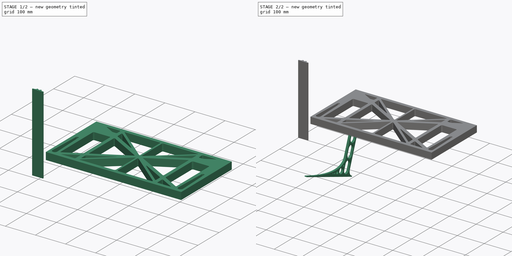
[diagram: build sequence overview — one tinted view per stage of 2, left to right]
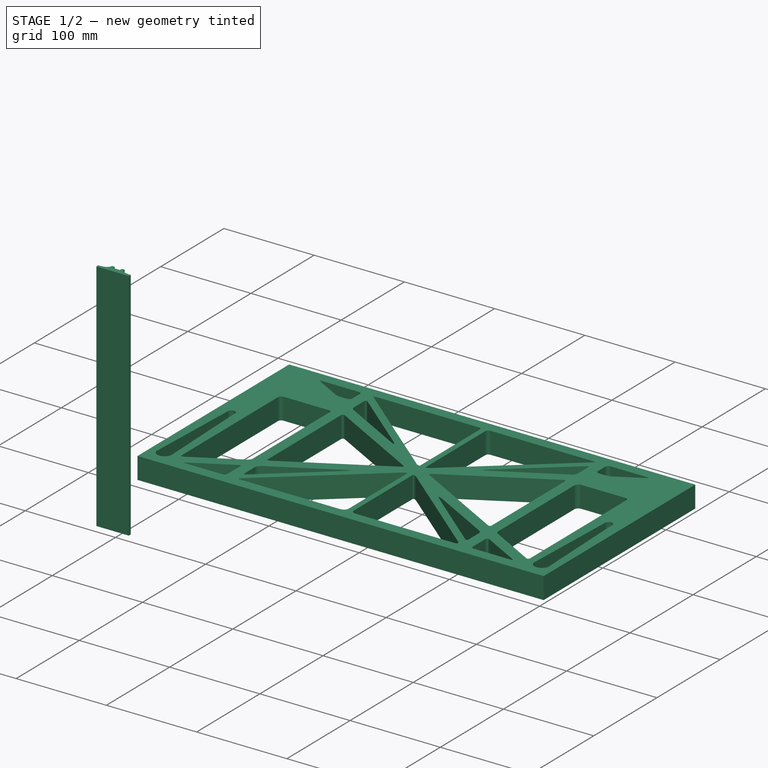
[diagram: stage 1 of 2 — iso view after this stage's code; geometry added in this stage tinted green]
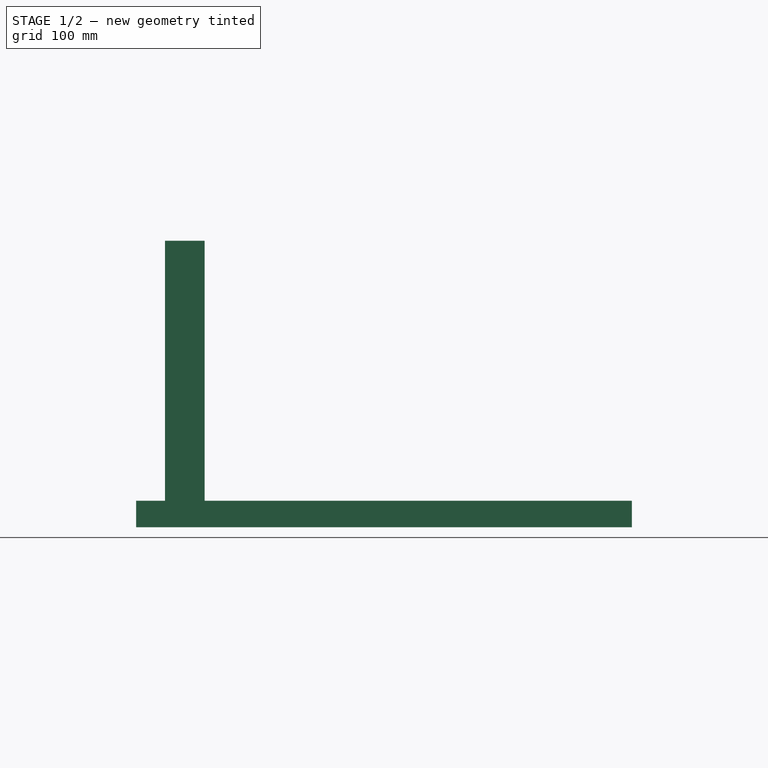
[diagram: stage 1 of 2 — front view after this stage's code; geometry added in this stage tinted green]
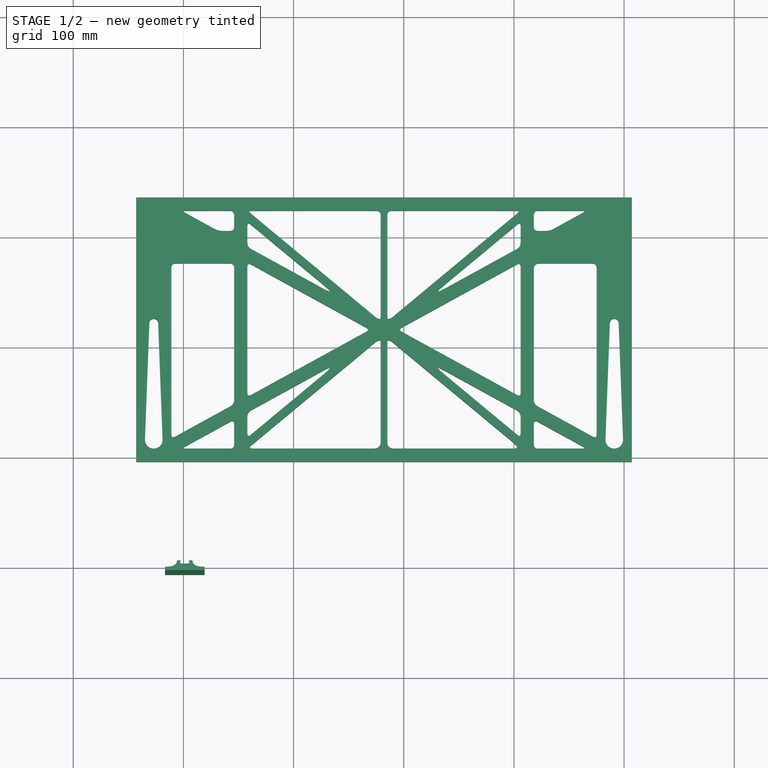
[diagram: stage 1 of 2 — top view after this stage's code; geometry added in this stage tinted green]
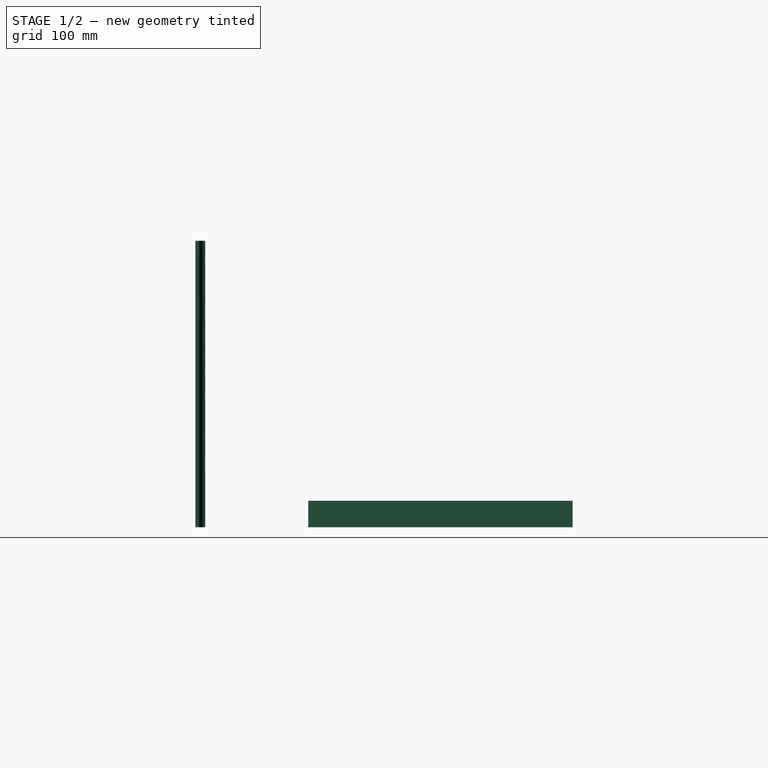
[diagram: stage 1 of 2 — right view after this stage's code; geometry added in this stage tinted green]
FCSTD DOCUMENT  (FreeCAD 0.19R0.19.2)
Label: laptopStand183FCStd
License: All rights reserved
LicenseURL: http://en.wikipedia.org/wiki/All_rights_reserved
objects: Sketcher::SketchObject×4, Part::Extrusion×3
note: 7 computed .brp shape members not serialized (recipe doc carries the construction recipe); baked Part::Feature solids carry a one-line shape summary decoded from their .brp

FEATURE [Sketcher::SketchObject] Sketch002
  FullyConstrained = true
  sketch-geometry (20):
    g0: LineSegment StartX=-2.77179 StartY=-200.304 StartZ=0 EndX=5.22821 EndY=-200.304 EndZ=0
    g1: LineSegment StartX=5.22821 StartY=-200.304 StartZ=0 EndX=5.22821 EndY=-197.304 EndZ=0
    g2: LineSegment StartX=-2.77179 StartY=-200.304 StartZ=0 EndX=-2.77179 EndY=-197.304 EndZ=0
    g3: LineSegment StartX=5.22821 StartY=-197.304 StartZ=0 EndX=8.22821 EndY=-197.304 EndZ=0
    g4: LineSegment StartX=-2.77179 StartY=-197.304 StartZ=0 EndX=-5.77179 EndY=-197.304 EndZ=0
    g5: LineSegment StartX=19.2282 StartY=-203.304 StartZ=0 EndX=19.2282 EndY=-206.304 EndZ=0
    g6: LineSegment StartX=-16.7718 StartY=-203.304 StartZ=0 EndX=-16.7718 EndY=-206.304 EndZ=0
    g7: LineSegment StartX=-16.7718 StartY=-206.304 StartZ=0 EndX=19.2282 EndY=-206.304 EndZ=0
    g8: Circle CenterX=-16.7718 CenterY=-203.304 CenterZ=0 NormalX=0 NormalY=0 NormalZ=1 AngleXU=0 Radius=1
    g9: Circle CenterX=-5.77179 CenterY=-203.304 CenterZ=0 NormalX=0 NormalY=0 NormalZ=1 AngleXU=0 Radius=1
    g10: Circle CenterX=-5.77179 CenterY=-197.304 CenterZ=0 NormalX=0 NormalY=0 NormalZ=1 AngleXU=0 Radius=1
    g11: BSplineCurve PolesCount=3 KnotsCount=2 Degree=2 IsPeriodic=0
    g12: GeomPoint X=-16.7718 Y=-203.304 Z=0
    g13: GeomPoint X=-5.77179 Y=-197.304 Z=0
    g14: Circle CenterX=19.2282 CenterY=-203.304 CenterZ=0 NormalX=0 NormalY=0 NormalZ=1 AngleXU=0 Radius=1
    g15: Circle CenterX=8.22821 CenterY=-203.304 CenterZ=0 NormalX=0 NormalY=0 NormalZ=1 AngleXU=0 Radius=1
    g16: Circle CenterX=8.22821 CenterY=-197.304 CenterZ=0 NormalX=0 NormalY=0 NormalZ=1 AngleXU=0 Radius=1
    g17: BSplineCurve PolesCount=3 KnotsCount=2 Degree=2 IsPeriodic=0
    g18: GeomPoint X=19.2282 Y=-203.304 Z=0
    g19: GeomPoint X=8.22821 Y=-197.304 Z=0
  constraints (41):
    c: Horizontal(g0)
    c: Distance(g0) = 8
    c: Coincident(g1,g0)
    c: Vertical(g1)
    c: Distance(g1) = 3
    c: Coincident(g2,g0)
    c: Vertical(g2)
    c: Distance(g2) = 3
    c: Coincident(g3,g1)
    c: Horizontal(g3)
    c: Distance(g3) = 3
    c: Coincident(g4,g2)
    c: Horizontal(g4)
    c: Distance(g4) = 3
    c: Vertical(g5)
    c: Vertical(g6)
    c: Coincident(g7,g6)
    c: Coincident(g7,g5)
    c: Weight(g8) = 1
    c: Equal(g8,g9)
    c: Equal(g8,g10)
    c: Coincident(g11,g4)
    c: InternalAlignment(g8,g11)
    c: InternalAlignment(g9,g11)
    c: InternalAlignment(g10,g11)
    c: InternalAlignment(g12,g11)
    c: InternalAlignment(g13,g11)
    c: Coincident(g17,g5)
    c: Weight(g14) = 1
    c: Equal(g14,g15)
    c: Equal(g14,g16)
    c: Coincident(g17,g3)
    c: InternalAlignment(g14,g17)
    c: InternalAlignment(g15,g17)
    c: InternalAlignment(g16,g17)
    c: InternalAlignment(g18,g17)
    c: InternalAlignment(g19,g17)
    c: Block(g7)
    c: Block(g17)
    c: Block(g11)
    c: Block(g6)
FEATURE [Part::Extrusion] Extrude003
  Base = -> Sketch002
  Dir = (0,0,1)
  DirMode = 2
  FaceMakerClass = Part::FaceMakerBullseye
  LengthFwd = 260
  LengthRev = 0
  Solid = true
  Symmetric = false
FEATURE [Sketcher::SketchObject] Sketch003
  FullyConstrained = false
  sketch-geometry (438):
    g0: LineSegment StartX=-42.9272 StartY=136.221 StartZ=0 EndX=-42.9272 EndY=-103.779 EndZ=0
    g1: LineSegment StartX=407.073 StartY=136.221 StartZ=0 EndX=407.073 EndY=-103.779 EndZ=0
    g2: ArcOfCircle CenterX=-26.9272 CenterY=-83.7794 CenterZ=0 NormalX=0 NormalY=0 NormalZ=1 AngleXU=0 Radius=8 StartAngle=3.14159 EndAngle=6.28319
    g3: ArcOfCircle CenterX=391.073 CenterY=-83.7794 CenterZ=0 NormalX=0 NormalY=0 NormalZ=1 AngleXU=0 Radius=8 StartAngle=3.14159 EndAngle=6.28319
    g4: Circle CenterX=175.022 CenterY=27.0628 CenterZ=0 NormalX=0 NormalY=0 NormalZ=1 AngleXU=0 Radius=1
    g5: Circle CenterX=179.022 CenterY=24.8665 CenterZ=0 NormalX=0 NormalY=0 NormalZ=1 AngleXU=0 Radius=1
    g6: Circle CenterX=179.022 CenterY=27.0628 CenterZ=0 NormalX=0 NormalY=0 NormalZ=1 AngleXU=0 Radius=1
    g7: BSplineCurve PolesCount=3 KnotsCount=2 Degree=2 IsPeriodic=0
    g8: GeomPoint X=175.022 Y=27.0628 Z=0
    g9: GeomPoint X=179.022 Y=27.0628 Z=0
    g10: Circle CenterX=189.124 CenterY=27.0628 CenterZ=0 NormalX=0 NormalY=0 NormalZ=1 AngleXU=0 Radius=1
    g11: Circle CenterX=185.124 CenterY=24.8665 CenterZ=0 NormalX=0 NormalY=0 NormalZ=1 AngleXU=0 Radius=1
    g12: Circle CenterX=185.124 CenterY=27.0628 CenterZ=0 NormalX=0 NormalY=0 NormalZ=1 AngleXU=0 Radius=1
    g13: BSplineCurve PolesCount=3 KnotsCount=2 Degree=2 IsPeriodic=0
    g14: GeomPoint X=189.124 Y=27.0628 Z=0
    g15: GeomPoint X=185.124 Y=27.0628 Z=0
    g16: Circle CenterX=175.022 CenterY=5.37834 CenterZ=0 NormalX=0 NormalY=0 NormalZ=1 AngleXU=0 Radius=1
    g17: Circle CenterX=179.022 CenterY=7.57463 CenterZ=0 NormalX=0 NormalY=0 NormalZ=1 AngleXU=0 Radius=1
    g18: Circle CenterX=179.022 CenterY=5.34704 CenterZ=0 NormalX=0 NormalY=0 NormalZ=1 AngleXU=0 Radius=1
    g19: BSplineCurve PolesCount=3 KnotsCount=2 Degree=2 IsPeriodic=0
    g20: GeomPoint X=175.022 Y=5.37834 Z=0
    g21: GeomPoint X=179.022 Y=5.34704 Z=0
    g22: Circle CenterX=189.124 CenterY=5.37834 CenterZ=0 NormalX=0 NormalY=0 NormalZ=1 AngleXU=0 Radius=1
    g23: Circle CenterX=185.124 CenterY=7.57463 CenterZ=0 NormalX=0 NormalY=0 NormalZ=1 AngleXU=0 Radius=1
    g24: Circle CenterX=185.124 CenterY=5.34704 CenterZ=0 NormalX=0 NormalY=0 NormalZ=1 AngleXU=0 Radius=1
    g25: BSplineCurve PolesCount=3 KnotsCount=2 Degree=2 IsPeriodic=0
    g26: GeomPoint X=189.124 Y=5.37834 Z=0
    g27: GeomPoint X=185.124 Y=5.34704 Z=0
    g28: Circle CenterX=165.871 CenterY=18.1458 CenterZ=0 NormalX=0 NormalY=0 NormalZ=1 AngleXU=0 Radius=1
    g29: Circle CenterX=169.377 CenterY=16.2206 CenterZ=0 NormalX=0 NormalY=0 NormalZ=1 AngleXU=0 Radius=1
    g30: Circle CenterX=165.871 CenterY=14.2954 CenterZ=0 NormalX=0 NormalY=0 NormalZ=1 AngleXU=0 Radius=1
    g31: BSplineCurve PolesCount=3 KnotsCount=2 Degree=2 IsPeriodic=0
    g32: GeomPoint X=165.871 Y=18.1458 Z=0
    g33: GeomPoint X=165.871 Y=14.2954 Z=0
    g34: Circle CenterX=198.275 CenterY=18.1458 CenterZ=0 NormalX=0 NormalY=0 NormalZ=1 AngleXU=0 Radius=1
    g35: Circle CenterX=194.768 CenterY=16.2206 CenterZ=0 NormalX=0 NormalY=0 NormalZ=1 AngleXU=0 Radius=1
    g36: Circle CenterX=198.275 CenterY=14.2954 CenterZ=0 NormalX=0 NormalY=0 NormalZ=1 AngleXU=0 Radius=1
    g37: BSplineCurve PolesCount=3 KnotsCount=2 Degree=2 IsPeriodic=0
    g38: GeomPoint X=198.275 Y=18.1458 Z=0
    g39: GeomPoint X=198.275 Y=14.2954 Z=0
    g40: LineSegment StartX=407.073 StartY=-103.779 StartZ=0 EndX=-42.9272 EndY=-103.779 EndZ=0
    g41: Circle CenterX=125.607 CenterY=54.1951 CenterZ=0 NormalX=0 NormalY=0 NormalZ=1 AngleXU=0 Radius=1
    g42: Circle CenterX=139.632 CenterY=46.4944 CenterZ=0 NormalX=0 NormalY=0 NormalZ=1 AngleXU=0 Radius=1
    g43: Circle CenterX=127.326 CenterY=56.7187 CenterZ=0 NormalX=0 NormalY=0 NormalZ=1 AngleXU=0 Radius=1
    g44: BSplineCurve PolesCount=3 KnotsCount=2 Degree=2 IsPeriodic=0
    g45: GeomPoint X=125.607 Y=54.1951 Z=0
    g46: GeomPoint X=127.326 Y=56.7187 Z=0
    g47: Circle CenterX=236.824 CenterY=56.7187 CenterZ=0 NormalX=0 NormalY=0 NormalZ=1 AngleXU=0 Radius=1
    g48: Circle CenterX=224.513 CenterY=46.4944 CenterZ=0 NormalX=0 NormalY=0 NormalZ=1 AngleXU=0 Radius=1
    g49: Circle CenterX=238.538 CenterY=54.1951 CenterZ=0 NormalX=0 NormalY=0 NormalZ=1 AngleXU=0 Radius=1
    g50: BSplineCurve PolesCount=3 KnotsCount=2 Degree=2 IsPeriodic=0
    g51: GeomPoint X=236.824 Y=56.7187 Z=0
    g52: GeomPoint X=238.538 Y=54.1951 Z=0
    g53: Circle CenterX=238.538 CenterY=-21.7539 CenterZ=0 NormalX=0 NormalY=0 NormalZ=1 AngleXU=0 Radius=1
    g54: Circle CenterX=224.513 CenterY=-14.0532 CenterZ=0 NormalX=0 NormalY=0 NormalZ=1 AngleXU=0 Radius=1
    g55: Circle CenterX=236.821 CenterY=-24.2775 CenterZ=0 NormalX=0 NormalY=0 NormalZ=1 AngleXU=0 Radius=1
    g56: BSplineCurve PolesCount=3 KnotsCount=2 Degree=2 IsPeriodic=0
    g57: GeomPoint X=238.538 Y=-21.7539 Z=0
    g58: GeomPoint X=236.821 Y=-24.2775 Z=0
    g59: Circle CenterX=125.607 CenterY=-21.7539 CenterZ=0 NormalX=0 NormalY=0 NormalZ=1 AngleXU=0 Radius=1
    g60: Circle CenterX=139.632 CenterY=-14.0532 CenterZ=0 NormalX=0 NormalY=0 NormalZ=1 AngleXU=0 Radius=1
    g61: Circle CenterX=127.325 CenterY=-24.2775 CenterZ=0 NormalX=0 NormalY=0 NormalZ=1 AngleXU=0 Radius=1
    g62: BSplineCurve PolesCount=3 KnotsCount=2 Degree=2 IsPeriodic=0
    g63: GeomPoint X=125.607 Y=-21.7539 Z=0
    g64: GeomPoint X=127.325 Y=-24.2775 Z=0
    g65: Circle CenterX=302.996 CenterY=111.695 CenterZ=0 NormalX=0 NormalY=0 NormalZ=1 AngleXU=0 Radius=1
    g66: Circle CenterX=306.073 CenterY=114.251 CenterZ=0 NormalX=0 NormalY=0 NormalZ=1 AngleXU=0 Radius=1
    g67: Circle CenterX=306.073 CenterY=110.251 CenterZ=0 NormalX=0 NormalY=0 NormalZ=1 AngleXU=0 Radius=1
    g68: BSplineCurve PolesCount=3 KnotsCount=2 Degree=2 IsPeriodic=0
    g69: GeomPoint X=302.996 Y=111.695 Z=0
    g70: GeomPoint X=306.073 Y=110.251 Z=0
    g71: Circle CenterX=306.073 CenterY=95.2763 CenterZ=0 NormalX=0 NormalY=0 NormalZ=1 AngleXU=0 Radius=1
    g72: Circle CenterX=306.073 CenterY=91.2763 CenterZ=0 NormalX=0 NormalY=0 NormalZ=1 AngleXU=0 Radius=1
    g73: Circle CenterX=302.567 CenterY=89.3511 CenterZ=0 NormalX=0 NormalY=0 NormalZ=1 AngleXU=0 Radius=1
    g74: BSplineCurve PolesCount=3 KnotsCount=2 Degree=2 IsPeriodic=0
    g75: GeomPoint X=306.073 Y=95.2763 Z=0
    g76: GeomPoint X=302.567 Y=89.3511 Z=0
    g77: LineSegment StartX=306.073 StartY=110.251 StartZ=0 EndX=306.073 EndY=95.2763 EndZ=0
    g78: LineSegment StartX=302.996 StartY=111.695 StartZ=0 EndX=236.824 EndY=56.7187 EndZ=0
    g79: LineSegment StartX=238.538 StartY=54.1951 StartZ=0 EndX=302.567 EndY=89.3511 EndZ=0
    g80: Circle CenterX=61.1496 CenterY=111.695 CenterZ=0 NormalX=0 NormalY=0 NormalZ=1 AngleXU=0 Radius=1
    g81: Circle CenterX=58.0728 CenterY=114.251 CenterZ=0 NormalX=0 NormalY=0 NormalZ=1 AngleXU=0 Radius=1
    g82: Circle CenterX=58.0728 CenterY=110.251 CenterZ=0 NormalX=0 NormalY=0 NormalZ=1 AngleXU=0 Radius=1
    g83: BSplineCurve PolesCount=3 KnotsCount=2 Degree=2 IsPeriodic=0
    g84: GeomPoint X=61.1496 Y=111.695 Z=0
    g85: GeomPoint X=58.0728 Y=110.251 Z=0
    g86: Circle CenterX=61.5791 CenterY=89.3511 CenterZ=0 NormalX=0 NormalY=0 NormalZ=1 AngleXU=0 Radius=1
    g87: Circle CenterX=58.0728 CenterY=91.2763 CenterZ=0 NormalX=0 NormalY=0 NormalZ=1 AngleXU=0 Radius=1
    g88: Circle CenterX=58.0728 CenterY=95.2763 CenterZ=0 NormalX=0 NormalY=0 NormalZ=1 AngleXU=0 Radius=1
    g89: BSplineCurve PolesCount=3 KnotsCount=2 Degree=2 IsPeriodic=0
    g90: GeomPoint X=61.5791 Y=89.3511 Z=0
    g91: GeomPoint X=58.0728 Y=95.2763 Z=0
    g92: LineSegment StartX=58.0728 StartY=110.251 StartZ=0 EndX=58.0728 EndY=95.2763 EndZ=0
    g93: LineSegment StartX=61.1496 StartY=111.695 StartZ=0 EndX=127.326 EndY=56.7187 EndZ=0
    g94: LineSegment StartX=125.607 StartY=54.1951 StartZ=0 EndX=61.5791 EndY=89.3511 EndZ=0
    g95: Circle CenterX=61.5791 CenterY=-56.9099 CenterZ=0 NormalX=0 NormalY=0 NormalZ=1 AngleXU=0 Radius=1
    g96: Circle CenterX=58.0728 CenterY=-58.8351 CenterZ=0 NormalX=0 NormalY=0 NormalZ=1 AngleXU=0 Radius=1
    g97: Circle CenterX=58.0728 CenterY=-62.8351 CenterZ=0 NormalX=0 NormalY=0 NormalZ=1 AngleXU=0 Radius=1
    g98: BSplineCurve PolesCount=3 KnotsCount=2 Degree=2 IsPeriodic=0
    g99: GeomPoint X=61.5791 Y=-56.9099 Z=0
    g100: GeomPoint X=58.0728 Y=-62.8351 Z=0
    g101: Circle CenterX=58.0728 CenterY=-77.8102 CenterZ=0 NormalX=0 NormalY=0 NormalZ=1 AngleXU=0 Radius=1
    g102: Circle CenterX=58.0728 CenterY=-81.8102 CenterZ=0 NormalX=0 NormalY=0 NormalZ=1 AngleXU=0 Radius=1
    g103: Circle CenterX=61.1496 CenterY=-79.2541 CenterZ=0 NormalX=0 NormalY=0 NormalZ=1 AngleXU=0 Radius=1
    g104: BSplineCurve PolesCount=3 KnotsCount=2 Degree=2 IsPeriodic=0
    g105: GeomPoint X=58.0728 Y=-77.8102 Z=0
    g106: GeomPoint X=61.1496 Y=-79.2541 Z=0
    g107: LineSegment StartX=58.0728 StartY=-62.8351 StartZ=0 EndX=58.0728 EndY=-77.8102 EndZ=0
    g108: LineSegment StartX=61.1496 StartY=-79.2541 StartZ=0 EndX=127.325 EndY=-24.2775 EndZ=0
    g109: LineSegment StartX=125.607 StartY=-21.7539 StartZ=0 EndX=61.5791 EndY=-56.9099 EndZ=0
    g110: Circle CenterX=302.567 CenterY=-56.9099 CenterZ=0 NormalX=0 NormalY=0 NormalZ=1 AngleXU=0 Radius=1
    g111: Circle CenterX=306.073 CenterY=-58.8351 CenterZ=0 NormalX=0 NormalY=0 NormalZ=1 AngleXU=0 Radius=1
    g112: Circle CenterX=306.073 CenterY=-62.8351 CenterZ=0 NormalX=0 NormalY=0 NormalZ=1 AngleXU=0 Radius=1
    g113: BSplineCurve PolesCount=3 KnotsCount=2 Degree=2 IsPeriodic=0
    g114: GeomPoint X=302.567 Y=-56.9099 Z=0
    g115: GeomPoint X=306.073 Y=-62.8351 Z=0
    g116: Circle CenterX=302.996 CenterY=-79.2541 CenterZ=0 NormalX=0 NormalY=0 NormalZ=1 AngleXU=0 Radius=1
    g117: Circle CenterX=306.073 CenterY=-81.8102 CenterZ=0 NormalX=0 NormalY=0 NormalZ=1 AngleXU=0 Radius=1
    g118: Circle CenterX=306.073 CenterY=-77.8102 CenterZ=0 NormalX=0 NormalY=0 NormalZ=1 AngleXU=0 Radius=1
    g119: BSplineCurve PolesCount=3 KnotsCount=2 Degree=2 IsPeriodic=0
    g120: GeomPoint X=302.996 Y=-79.2541 Z=0
    g121: GeomPoint X=306.073 Y=-77.8102 Z=0
    g122: LineSegment StartX=306.073 StartY=-62.8351 StartZ=0 EndX=306.073 EndY=-77.8102 EndZ=0
    g123: LineSegment StartX=302.996 StartY=-79.2541 StartZ=0 EndX=236.821 EndY=-24.2775 EndZ=0
    g124: LineSegment StartX=238.538 StartY=-21.7539 StartZ=0 EndX=302.567 EndY=-56.9099 EndZ=0
    g125: Circle CenterX=61.6457 CenterY=-88.8112 CenterZ=0 NormalX=0 NormalY=0 NormalZ=1 AngleXU=0 Radius=1
    g126: Circle CenterX=58.0728 CenterY=-91.7794 CenterZ=0 NormalX=0 NormalY=0 NormalZ=1 AngleXU=0 Radius=1
    g127: Circle CenterX=63.9135 CenterY=-91.7791 CenterZ=0 NormalX=0 NormalY=0 NormalZ=1 AngleXU=0 Radius=1
    g128: BSplineCurve PolesCount=3 KnotsCount=2 Degree=2 IsPeriodic=0
    g129: GeomPoint X=61.6457 Y=-88.8112 Z=0
    g130: GeomPoint X=63.9135 Y=-91.7791 Z=0
    g131: Circle CenterX=179.022 CenterY=-85.8163 CenterZ=0 NormalX=0 NormalY=0 NormalZ=1 AngleXU=0 Radius=1
    g132: Circle CenterX=179.022 CenterY=-91.7794 CenterZ=0 NormalX=0 NormalY=0 NormalZ=1 AngleXU=0 Radius=1
    g133: Circle CenterX=171.895 CenterY=-91.7791 CenterZ=0 NormalX=0 NormalY=0 NormalZ=1 AngleXU=0 Radius=1
    g134: BSplineCurve PolesCount=3 KnotsCount=2 Degree=2 IsPeriodic=0
    g135: GeomPoint X=179.022 Y=-85.8163 Z=0
    g136: GeomPoint X=171.895 Y=-91.7791 Z=0
    g137: Circle CenterX=185.124 CenterY=-86.2028 CenterZ=0 NormalX=0 NormalY=0 NormalZ=1 AngleXU=0 Radius=1
    g138: Circle CenterX=185.124 CenterY=-91.7794 CenterZ=0 NormalX=0 NormalY=0 NormalZ=1 AngleXU=0 Radius=1
    g139: Circle CenterX=191.747 CenterY=-91.7794 CenterZ=0 NormalX=0 NormalY=0 NormalZ=1 AngleXU=0 Radius=1
    g140: BSplineCurve PolesCount=3 KnotsCount=2 Degree=2 IsPeriodic=0
    g141: GeomPoint X=185.124 Y=-86.2028 Z=0
    g142: GeomPoint X=191.747 Y=-91.7794 Z=0
    g143: Circle CenterX=299.888 CenterY=-86.6413 CenterZ=0 NormalX=0 NormalY=0 NormalZ=1 AngleXU=0 Radius=1
    g144: Circle CenterX=306.073 CenterY=-91.7794 CenterZ=0 NormalX=0 NormalY=0 NormalZ=1 AngleXU=0 Radius=1
    g145: Circle CenterX=298.776 CenterY=-91.7794 CenterZ=0 NormalX=0 NormalY=0 NormalZ=1 AngleXU=0 Radius=1
    g146: BSplineCurve PolesCount=3 KnotsCount=2 Degree=2 IsPeriodic=0
    g147: GeomPoint X=299.888 Y=-86.6413 Z=0
    g148: GeomPoint X=298.776 Y=-91.7794 Z=0
    g149: LineSegment StartX=189.124 StartY=5.37834 StartZ=0 EndX=299.888 EndY=-86.6413 EndZ=0
    g150: LineSegment StartX=298.776 StartY=-91.7794 StartZ=0 EndX=191.747 EndY=-91.7794 EndZ=0
    g151: LineSegment StartX=185.124 StartY=-86.2028 StartZ=0 EndX=185.124 EndY=5.34704 EndZ=0
    g152: LineSegment StartX=179.022 StartY=5.34704 StartZ=0 EndX=179.022 EndY=-85.8163 EndZ=0
    g153: LineSegment StartX=171.895 StartY=-91.7791 StartZ=0 EndX=63.9135 EndY=-91.7791 EndZ=0
    g154: LineSegment StartX=61.6457 StartY=-88.8112 StartZ=0 EndX=175.022 EndY=5.37834 EndZ=0
    g155: Circle CenterX=302.073 CenterY=124.221 CenterZ=0 NormalX=0 NormalY=0 NormalZ=1 AngleXU=0 Radius=1
    g156: Circle CenterX=306.073 CenterY=124.221 CenterZ=0 NormalX=0 NormalY=0 NormalZ=1 AngleXU=0 Radius=1
    g157: Circle CenterX=302.996 CenterY=121.665 CenterZ=0 NormalX=0 NormalY=0 NormalZ=1 AngleXU=0 Radius=1
    g158: BSplineCurve PolesCount=3 KnotsCount=2 Degree=2 IsPeriodic=0
    g159: GeomPoint X=302.073 Y=124.221 Z=0
    g160: GeomPoint X=302.996 Y=121.665 Z=0
    g161: Circle CenterX=189.124 CenterY=124.221 CenterZ=0 NormalX=0 NormalY=0 NormalZ=1 AngleXU=0 Radius=1
    g162: Circle CenterX=185.124 CenterY=124.221 CenterZ=0 NormalX=0 NormalY=0 NormalZ=1 AngleXU=0 Radius=1
    g163: Circle CenterX=185.124 CenterY=120.221 CenterZ=0 NormalX=0 NormalY=0 NormalZ=1 AngleXU=0 Radius=1
    g164: BSplineCurve PolesCount=3 KnotsCount=2 Degree=2 IsPeriodic=0
    g165: GeomPoint X=189.124 Y=124.221 Z=0
    g166: GeomPoint X=185.124 Y=120.221 Z=0
    g167: Circle CenterX=175.022 CenterY=124.221 CenterZ=0 NormalX=0 NormalY=0 NormalZ=1 AngleXU=0 Radius=1
    g168: Circle CenterX=179.022 CenterY=124.221 CenterZ=0 NormalX=0 NormalY=0 NormalZ=1 AngleXU=0 Radius=1
    g169: Circle CenterX=179.022 CenterY=120.221 CenterZ=0 NormalX=0 NormalY=0 NormalZ=1 AngleXU=0 Radius=1
    g170: BSplineCurve PolesCount=3 KnotsCount=2 Degree=2 IsPeriodic=0
    g171: GeomPoint X=175.022 Y=124.221 Z=0
    g172: GeomPoint X=179.022 Y=120.221 Z=0
    g173: Circle CenterX=62.0728 CenterY=124.221 CenterZ=0 NormalX=0 NormalY=0 NormalZ=1 AngleXU=0 Radius=1
    g174: Circle CenterX=58.0728 CenterY=124.221 CenterZ=0 NormalX=0 NormalY=0 NormalZ=1 AngleXU=0 Radius=1
    g175: Circle CenterX=61.1496 CenterY=121.665 CenterZ=0 NormalX=0 NormalY=0 NormalZ=1 AngleXU=0 Radius=1
    g176: BSplineCurve PolesCount=3 KnotsCount=2 Degree=2 IsPeriodic=0
    g177: GeomPoint X=62.0728 Y=124.221 Z=0
    g178: GeomPoint X=61.1496 Y=121.665 Z=0
    g179: LineSegment StartX=179.022 StartY=120.221 StartZ=0 EndX=179.022 EndY=27.0628 EndZ=0
    g180: LineSegment StartX=185.124 StartY=27.0628 StartZ=0 EndX=185.124 EndY=120.221 EndZ=0
    g181: LineSegment StartX=302.996 StartY=121.665 StartZ=0 EndX=189.124 EndY=27.0628 EndZ=0
    g182: LineSegment StartX=175.022 StartY=27.0628 StartZ=0 EndX=61.1496 EndY=121.665 EndZ=0
    g183: Circle CenterX=61.5791 CenterY=75.4095 CenterZ=0 NormalX=0 NormalY=0 NormalZ=1 AngleXU=0 Radius=1
    g184: Circle CenterX=58.0728 CenterY=77.3346 CenterZ=0 NormalX=0 NormalY=0 NormalZ=1 AngleXU=0 Radius=1
    g185: Circle CenterX=58.0728 CenterY=73.3346 CenterZ=0 NormalX=0 NormalY=0 NormalZ=1 AngleXU=0 Radius=1
    g186: BSplineCurve PolesCount=3 KnotsCount=2 Degree=2 IsPeriodic=0
    g187: GeomPoint X=61.5791 Y=75.4095 Z=0
    g188: GeomPoint X=58.0728 Y=73.3346 Z=0
    g189: Circle CenterX=58.0728 CenterY=-40.8935 CenterZ=0 NormalX=0 NormalY=0 NormalZ=1 AngleXU=0 Radius=1
    g190: Circle CenterX=58.0728 CenterY=-44.8935 CenterZ=0 NormalX=0 NormalY=0 NormalZ=1 AngleXU=0 Radius=1
    g191: Circle CenterX=61.5791 CenterY=-42.9683 CenterZ=0 NormalX=0 NormalY=0 NormalZ=1 AngleXU=0 Radius=1
    g192: BSplineCurve PolesCount=3 KnotsCount=2 Degree=2 IsPeriodic=0
    g193: GeomPoint X=58.0728 Y=-40.8935 Z=0
    g194: GeomPoint X=61.5791 Y=-42.9683 Z=0
    g195: LineSegment StartX=61.5791 StartY=-42.9683 StartZ=0 EndX=165.871 EndY=14.2954 EndZ=0
    g196: LineSegment StartX=165.871 StartY=18.1458 StartZ=0 EndX=61.5791 EndY=75.4095 EndZ=0
    g197: LineSegment StartX=58.0728 StartY=73.3346 StartZ=0 EndX=58.0728 EndY=-40.8935 EndZ=0
    g198: Circle CenterX=302.567 CenterY=-42.9683 CenterZ=0 NormalX=0 NormalY=0 NormalZ=1 AngleXU=0 Radius=1
    g199: Circle CenterX=306.073 CenterY=-44.8935 CenterZ=0 NormalX=0 NormalY=0 NormalZ=1 AngleXU=0 Radius=1
    g200: Circle CenterX=306.073 CenterY=-40.8935 CenterZ=0 NormalX=0 NormalY=0 NormalZ=1 AngleXU=0 Radius=1
    g201: BSplineCurve PolesCount=3 KnotsCount=2 Degree=2 IsPeriodic=0
    g202: GeomPoint X=302.567 Y=-42.9683 Z=0
    g203: GeomPoint X=306.073 Y=-40.8935 Z=0
    g204: Circle CenterX=306.073 CenterY=73.3346 CenterZ=0 NormalX=0 NormalY=0 NormalZ=1 AngleXU=0 Radius=1
    g205: Circle CenterX=306.073 CenterY=77.3346 CenterZ=0 NormalX=0 NormalY=0 NormalZ=1 AngleXU=0 Radius=1
    g206: Circle CenterX=302.567 CenterY=75.4095 CenterZ=0 NormalX=0 NormalY=0 NormalZ=1 AngleXU=0 Radius=1
    g207: BSplineCurve PolesCount=3 KnotsCount=2 Degree=2 IsPeriodic=0
    g208: GeomPoint X=306.073 Y=73.3346 Z=0
    g209: GeomPoint X=302.567 Y=75.4095 Z=0
    g210: LineSegment StartX=302.567 StartY=-42.9683 StartZ=0 EndX=198.275 EndY=14.2954 EndZ=0
    g211: LineSegment StartX=198.275 StartY=18.1458 StartZ=0 EndX=302.567 EndY=75.4095 EndZ=0
    g212: LineSegment StartX=306.073 StartY=73.3346 StartZ=0 EndX=306.073 EndY=-40.8935 EndZ=0
    g213: LineSegment StartX=322.073 StartY=105.865 StartZ=0 EndX=328.643 EndY=105.865 EndZ=0
    g214: LineSegment StartX=318.073 StartY=120.221 StartZ=0 EndX=318.073 EndY=109.865 EndZ=0
    g215: LineSegment StartX=336.157 StartY=107.779 StartZ=0 EndX=362.567 EndY=122.294 EndZ=0
    g216: Circle CenterX=362.073 CenterY=124.221 CenterZ=0 NormalX=0 NormalY=0 NormalZ=1 AngleXU=0 Radius=1
    g217: Circle CenterX=366.073 CenterY=124.221 CenterZ=0 NormalX=0 NormalY=0 NormalZ=1 AngleXU=0 Radius=1
    g218: Circle CenterX=362.567 CenterY=122.294 CenterZ=0 NormalX=0 NormalY=0 NormalZ=1 AngleXU=0 Radius=1
    g219: BSplineCurve PolesCount=3 KnotsCount=2 Degree=2 IsPeriodic=0
    g220: GeomPoint X=362.073 Y=124.221 Z=0
    g221: GeomPoint X=362.567 Y=122.294 Z=0
    g222: Circle CenterX=322.073 CenterY=124.221 CenterZ=0 NormalX=0 NormalY=0 NormalZ=1 AngleXU=0 Radius=1
    g223: Circle CenterX=318.073 CenterY=124.221 CenterZ=0 NormalX=0 NormalY=0 NormalZ=1 AngleXU=0 Radius=1
    g224: Circle CenterX=318.073 CenterY=120.221 CenterZ=0 NormalX=0 NormalY=0 NormalZ=1 AngleXU=0 Radius=1
    g225: BSplineCurve PolesCount=3 KnotsCount=2 Degree=2 IsPeriodic=0
    g226: GeomPoint X=322.073 Y=124.221 Z=0
    g227: GeomPoint X=318.073 Y=120.221 Z=0
    g228: Circle CenterX=322.073 CenterY=105.865 CenterZ=0 NormalX=0 NormalY=0 NormalZ=1 AngleXU=0 Radius=1
    g229: Circle CenterX=318.073 CenterY=105.865 CenterZ=0 NormalX=0 NormalY=0 NormalZ=1 AngleXU=0 Radius=1
    g230: Circle CenterX=318.073 CenterY=109.865 CenterZ=0 NormalX=0 NormalY=0 NormalZ=1 AngleXU=0 Radius=1
    g231: BSplineCurve PolesCount=3 KnotsCount=2 Degree=2 IsPeriodic=0
    g232: GeomPoint X=322.073 Y=105.865 Z=0
    g233: GeomPoint X=318.073 Y=109.865 Z=0
    g234: Circle CenterX=336.157 CenterY=107.779 CenterZ=0 NormalX=0 NormalY=0 NormalZ=1 AngleXU=0 Radius=1
    g235: Circle CenterX=332.651 CenterY=105.853 CenterZ=0 NormalX=0 NormalY=0 NormalZ=1 AngleXU=0 Radius=1
    g236: Circle CenterX=328.643 CenterY=105.865 CenterZ=0 NormalX=0 NormalY=0 NormalZ=1 AngleXU=0 Radius=1
    g237: BSplineCurve PolesCount=3 KnotsCount=2 Degree=2 IsPeriodic=0
    g238: GeomPoint X=336.157 Y=107.779 Z=0
    g239: GeomPoint X=328.643 Y=105.865 Z=0
    g240: LineSegment StartX=322.073 StartY=124.221 StartZ=0 EndX=362.073 EndY=124.221 EndZ=0
    g241: Circle CenterX=371.567 CenterY=-80.8644 CenterZ=0 NormalX=0 NormalY=0 NormalZ=1 AngleXU=0 Radius=1
    g242: Circle CenterX=375.073 CenterY=-82.7896 CenterZ=0 NormalX=0 NormalY=0 NormalZ=1 AngleXU=0 Radius=1
    g243: Circle CenterX=375.073 CenterY=-78.7896 CenterZ=0 NormalX=0 NormalY=0 NormalZ=1 AngleXU=0 Radius=1
    g244: BSplineCurve PolesCount=3 KnotsCount=2 Degree=2 IsPeriodic=0
    g245: GeomPoint X=371.567 Y=-80.8644 Z=0
    g246: GeomPoint X=375.073 Y=-78.7896 Z=0
    g247: Circle CenterX=321.579 CenterY=-53.4075 CenterZ=0 NormalX=0 NormalY=0 NormalZ=1 AngleXU=0 Radius=1
    g248: Circle CenterX=318.073 CenterY=-51.4823 CenterZ=0 NormalX=0 NormalY=0 NormalZ=1 AngleXU=0 Radius=1
    g249: Circle CenterX=318.073 CenterY=-47.4805 CenterZ=0 NormalX=0 NormalY=0 NormalZ=1 AngleXU=0 Radius=1
    g250: BSplineCurve PolesCount=3 KnotsCount=2 Degree=2 IsPeriodic=0
    g251: GeomPoint X=321.579 Y=-53.4075 Z=0
    g252: GeomPoint X=318.073 Y=-47.4805 Z=0
    g253: LineSegment StartX=371.567 StartY=-80.8644 StartZ=0 EndX=321.579 EndY=-53.4075 EndZ=0
    g254: Circle CenterX=321.579 CenterY=-67.3492 CenterZ=0 NormalX=0 NormalY=0 NormalZ=1 AngleXU=0 Radius=1
    g255: Circle CenterX=318.073 CenterY=-65.424 CenterZ=0 NormalX=0 NormalY=0 NormalZ=1 AngleXU=0 Radius=1
    g256: Circle CenterX=318.073 CenterY=-69.424 CenterZ=0 NormalX=0 NormalY=0 NormalZ=1 AngleXU=0 Radius=1
    g257: BSplineCurve PolesCount=3 KnotsCount=2 Degree=2 IsPeriodic=0
    g258: GeomPoint X=321.579 Y=-67.3492 Z=0
    g259: GeomPoint X=318.073 Y=-69.424 Z=0
    g260: Circle CenterX=362.567 CenterY=-89.8542 CenterZ=0 NormalX=0 NormalY=0 NormalZ=1 AngleXU=0 Radius=1
    g261: Circle CenterX=366.073 CenterY=-91.7794 CenterZ=0 NormalX=0 NormalY=0 NormalZ=1 AngleXU=0 Radius=1
    g262: Circle CenterX=362.073 CenterY=-91.7794 CenterZ=0 NormalX=0 NormalY=0 NormalZ=1 AngleXU=0 Radius=1
    g263: BSplineCurve PolesCount=3 KnotsCount=2 Degree=2 IsPeriodic=0
    g264: GeomPoint X=362.567 Y=-89.8542 Z=0
    g265: GeomPoint X=362.073 Y=-91.7794 Z=0
    g266: Circle CenterX=322.073 CenterY=-91.7794 CenterZ=0 NormalX=0 NormalY=0 NormalZ=1 AngleXU=0 Radius=1
    g267: Circle CenterX=318.073 CenterY=-91.7794 CenterZ=0 NormalX=0 NormalY=0 NormalZ=1 AngleXU=0 Radius=1
    g268: Circle CenterX=318.073 CenterY=-87.7794 CenterZ=0 NormalX=0 NormalY=0 NormalZ=1 AngleXU=0 Radius=1
    g269: BSplineCurve PolesCount=3 KnotsCount=2 Degree=2 IsPeriodic=0
    g270: GeomPoint X=322.073 Y=-91.7794 Z=0
    g271: GeomPoint X=318.073 Y=-87.7794 Z=0
    g272: LineSegment StartX=362.567 StartY=-89.8542 StartZ=0 EndX=321.579 EndY=-67.3492 EndZ=0
    g273: LineSegment StartX=318.073 StartY=-69.424 StartZ=0 EndX=318.073 EndY=-87.7794 EndZ=0
    g274: LineSegment StartX=322.073 StartY=-91.7794 StartZ=0 EndX=362.073 EndY=-91.7794 EndZ=0
    g275: Circle CenterX=2.07281 CenterY=124.221 CenterZ=0 NormalX=0 NormalY=0 NormalZ=1 AngleXU=0 Radius=1
    g276: Circle CenterX=1.57905 CenterY=122.295 CenterZ=0 NormalX=0 NormalY=0 NormalZ=1 AngleXU=0 Radius=1
    g277: BSplineCurve PolesCount=3 KnotsCount=2 Degree=2 IsPeriodic=0
    g278: GeomPoint X=2.07281 Y=124.221 Z=0
    g279: GeomPoint X=1.57905 Y=122.295 Z=0
    g280: Circle CenterX=42.0728 CenterY=124.221 CenterZ=0 NormalX=0 NormalY=0 NormalZ=1 AngleXU=0 Radius=1
    g281: Circle CenterX=46.0728 CenterY=124.221 CenterZ=0 NormalX=0 NormalY=0 NormalZ=1 AngleXU=0 Radius=1
    g282: Circle CenterX=46.0728 CenterY=120.221 CenterZ=0 NormalX=0 NormalY=0 NormalZ=1 AngleXU=0 Radius=1
    g283: BSplineCurve PolesCount=3 KnotsCount=2 Degree=2 IsPeriodic=0
    g284: GeomPoint X=42.0728 Y=124.221 Z=0
    g285: GeomPoint X=46.0728 Y=120.221 Z=0
    g286: Circle CenterX=46.0728 CenterY=109.865 CenterZ=0 NormalX=0 NormalY=0 NormalZ=1 AngleXU=0 Radius=1
    g287: Circle CenterX=46.0728 CenterY=105.865 CenterZ=0 NormalX=0 NormalY=0 NormalZ=1 AngleXU=0 Radius=1
    g288: Circle CenterX=42.0728 CenterY=105.865 CenterZ=0 NormalX=0 NormalY=0 NormalZ=1 AngleXU=0 Radius=1
    g289: BSplineCurve PolesCount=3 KnotsCount=2 Degree=2 IsPeriodic=0
    g290: GeomPoint X=46.0728 Y=109.865 Z=0
    g291: GeomPoint X=42.0728 Y=105.865 Z=0
    g292: Circle CenterX=35.5028 CenterY=105.865 CenterZ=0 NormalX=0 NormalY=0 NormalZ=1 AngleXU=0 Radius=1
    g293: Circle CenterX=31.5028 CenterY=105.865 CenterZ=0 NormalX=0 NormalY=0 NormalZ=1 AngleXU=0 Radius=1
    g294: Circle CenterX=27.9965 CenterY=107.79 CenterZ=0 NormalX=0 NormalY=0 NormalZ=1 AngleXU=0 Radius=1
    g295: BSplineCurve PolesCount=3 KnotsCount=2 Degree=2 IsPeriodic=0
    g296: GeomPoint X=35.5028 Y=105.865 Z=0
    g297: GeomPoint X=27.9965 Y=107.79 Z=0
    g298: LineSegment StartX=2.07281 StartY=124.221 StartZ=0 EndX=42.0728 EndY=124.221 EndZ=0
    g299: LineSegment StartX=46.0728 StartY=120.221 StartZ=0 EndX=46.0728 EndY=109.865 EndZ=0
    g300: LineSegment StartX=42.0728 StartY=105.865 StartZ=0 EndX=35.5028 EndY=105.865 EndZ=0
    g301: LineSegment StartX=27.9965 StartY=107.79 StartZ=0 EndX=1.57905 EndY=122.295 EndZ=0
    g302: Circle CenterX=42.5666 CenterY=-67.3492 CenterZ=0 NormalX=0 NormalY=0 NormalZ=1 AngleXU=0 Radius=1
    g303: Circle CenterX=46.0728 CenterY=-65.424 CenterZ=0 NormalX=0 NormalY=0 NormalZ=1 AngleXU=0 Radius=1
    g304: Circle CenterX=46.0728 CenterY=-69.424 CenterZ=0 NormalX=0 NormalY=0 NormalZ=1 AngleXU=0 Radius=1
    g305: BSplineCurve PolesCount=3 KnotsCount=2 Degree=2 IsPeriodic=0
    g306: GeomPoint X=42.5666 Y=-67.3492 Z=0
    g307: GeomPoint X=46.0728 Y=-69.424 Z=0
    g308: Circle CenterX=46.0728 CenterY=-87.7794 CenterZ=0 NormalX=0 NormalY=0 NormalZ=1 AngleXU=0 Radius=1
    g309: Circle CenterX=46.0728 CenterY=-91.7794 CenterZ=0 NormalX=0 NormalY=0 NormalZ=1 AngleXU=0 Radius=1
    g310: Circle CenterX=42.0728 CenterY=-91.7794 CenterZ=0 NormalX=0 NormalY=0 NormalZ=1 AngleXU=0 Radius=1
    g311: BSplineCurve PolesCount=3 KnotsCount=2 Degree=2 IsPeriodic=0
    g312: GeomPoint X=46.0728 Y=-87.7794 Z=0
    g313: GeomPoint X=42.0728 Y=-91.7794 Z=0
    g314: Circle CenterX=2.07281 CenterY=-91.7794 CenterZ=0 NormalX=0 NormalY=0 NormalZ=1 AngleXU=0 Radius=1
    g315: Circle CenterX=-1.92719 CenterY=-91.7794 CenterZ=0 NormalX=0 NormalY=0 NormalZ=1 AngleXU=0 Radius=1
    g316: Circle CenterX=1.57905 CenterY=-89.8542 CenterZ=0 NormalX=0 NormalY=0 NormalZ=1 AngleXU=0 Radius=1
    g317: BSplineCurve PolesCount=3 KnotsCount=2 Degree=2 IsPeriodic=0
    g318: GeomPoint X=2.07281 Y=-91.7794 Z=0
    g319: GeomPoint X=1.57905 Y=-89.8542 Z=0
    g320: LineSegment StartX=2.07281 StartY=-91.7794 StartZ=0 EndX=42.0728 EndY=-91.7794 EndZ=0
    g321: LineSegment StartX=46.0728 StartY=-87.7794 StartZ=0 EndX=46.0728 EndY=-69.424 EndZ=0
    g322: LineSegment StartX=42.5666 StartY=-67.3492 StartZ=0 EndX=1.57905 EndY=-89.8542 EndZ=0
    g323: Circle CenterX=322.073 CenterY=76.4095 CenterZ=0 NormalX=0 NormalY=0 NormalZ=1 AngleXU=0 Radius=4
    g324: BSplineCurve PolesCount=3 KnotsCount=2 Degree=2 IsPeriodic=0
    g325: GeomPoint X=318.073 Y=72.4095 Z=0
    g326: GeomPoint X=322.073 Y=76.4095 Z=0
    g327: Circle CenterX=375.073 CenterY=72.4095 CenterZ=0 NormalX=0 NormalY=0 NormalZ=1 AngleXU=0 Radius=1
    g328: Circle CenterX=375.073 CenterY=76.4095 CenterZ=0 NormalX=0 NormalY=0 NormalZ=1 AngleXU=0 Radius=1
    g329: Circle CenterX=371.073 CenterY=76.4095 CenterZ=0 NormalX=0 NormalY=0 NormalZ=1 AngleXU=0 Radius=1
    g330: BSplineCurve PolesCount=3 KnotsCount=2 Degree=2 IsPeriodic=0
    g331: GeomPoint X=375.073 Y=72.4095 Z=0
    g332: GeomPoint X=371.073 Y=76.4095 Z=0
    g333: LineSegment StartX=322.073 StartY=76.4095 StartZ=0 EndX=371.073 EndY=76.4095 EndZ=0
    g334: LineSegment StartX=318.073 StartY=72.4095 StartZ=0 EndX=318.073 EndY=-47.4805 EndZ=0
    g335: LineSegment StartX=375.073 StartY=72.4095 StartZ=0 EndX=375.073 EndY=-78.7896 EndZ=0
    g336: ArcOfCircle CenterX=-26.9272 CenterY=22.1087 CenterZ=0 NormalX=0 NormalY=0 NormalZ=1 AngleXU=0 Radius=4 StartAngle=5e-16 EndAngle=3.14159
    g337: LineSegment StartX=-22.9272 StartY=22.1087 StartZ=0 EndX=-18.9272 EndY=-83.7794 EndZ=0
    g338: LineSegment StartX=-34.9272 StartY=-83.7794 StartZ=0 EndX=-30.9272 EndY=22.1087 EndZ=0
    g339: ArcOfCircle CenterX=391.073 CenterY=22.1087 CenterZ=0 NormalX=0 NormalY=0 NormalZ=1 AngleXU=0 Radius=4 StartAngle=0 EndAngle=3.14159
    g340: LineSegment StartX=387.073 StartY=22.1087 StartZ=0 EndX=383.073 EndY=-83.7794 EndZ=0
    g341: LineSegment StartX=395.073 StartY=22.1087 StartZ=0 EndX=399.073 EndY=-83.7794 EndZ=0
    g342: Circle CenterX=-10.9272 CenterY=-78.7794 CenterZ=0 NormalX=0 NormalY=0 NormalZ=1 AngleXU=0 Radius=1
    g343: Circle CenterX=-10.9272 CenterY=-82.7794 CenterZ=0 NormalX=0 NormalY=0 NormalZ=1 AngleXU=0 Radius=1
    g344: Circle CenterX=-7.42095 CenterY=-80.8542 CenterZ=0 NormalX=0 NormalY=0 NormalZ=1 AngleXU=0 Radius=1
    g345: BSplineCurve PolesCount=3 KnotsCount=2 Degree=2 IsPeriodic=0
    g346: GeomPoint X=-10.9272 Y=-78.7794 Z=0
    g347: GeomPoint X=-7.42095 Y=-80.8542 Z=0
    g348: Circle CenterX=42.5666 CenterY=-53.4075 CenterZ=0 NormalX=0 NormalY=0 NormalZ=1 AngleXU=0 Radius=1
    g349: Circle CenterX=46.0728 CenterY=-51.4823 CenterZ=0 NormalX=0 NormalY=0 NormalZ=1 AngleXU=0 Radius=1
    g350: Circle CenterX=46.0728 CenterY=-47.4823 CenterZ=0 NormalX=0 NormalY=0 NormalZ=1 AngleXU=0 Radius=1
    g351: BSplineCurve PolesCount=3 KnotsCount=2 Degree=2 IsPeriodic=0
    g352: GeomPoint X=42.5666 Y=-53.4075 Z=0
    g353: GeomPoint X=46.0728 Y=-47.4823 Z=0
    g354: Circle CenterX=46.0728 CenterY=72.4095 CenterZ=0 NormalX=0 NormalY=0 NormalZ=1 AngleXU=0 Radius=1
    g355: Circle CenterX=46.0728 CenterY=76.4095 CenterZ=0 NormalX=0 NormalY=0 NormalZ=1 AngleXU=0 Radius=1
    g356: Circle CenterX=42.0728 CenterY=76.4095 CenterZ=0 NormalX=0 NormalY=0 NormalZ=1 AngleXU=0 Radius=1
    g357: BSplineCurve PolesCount=3 KnotsCount=2 Degree=2 IsPeriodic=0
    g358: GeomPoint X=46.0728 Y=72.4095 Z=0
    g359: GeomPoint X=42.0728 Y=76.4095 Z=0
    g360: Circle CenterX=-6.92718 CenterY=76.4095 CenterZ=0 NormalX=0 NormalY=0 NormalZ=1 AngleXU=0 Radius=1
    g361: Circle CenterX=-10.9272 CenterY=76.4095 CenterZ=0 NormalX=0 NormalY=0 NormalZ=1 AngleXU=0 Radius=1
    g362: Circle CenterX=-10.9272 CenterY=72.4095 CenterZ=0 NormalX=0 NormalY=0 NormalZ=1 AngleXU=0 Radius=1
    g363: BSplineCurve PolesCount=3 KnotsCount=2 Degree=2 IsPeriodic=0
    g364: GeomPoint X=-6.92718 Y=76.4095 Z=0
    g365: GeomPoint X=-10.9272 Y=72.4095 Z=0
    g366: LineSegment StartX=-10.9272 StartY=72.4095 StartZ=0 EndX=-10.9272 EndY=-78.7794 EndZ=0
    g367: LineSegment StartX=-7.42095 StartY=-80.8542 StartZ=0 EndX=42.5666 EndY=-53.4075 EndZ=0
    g368: LineSegment StartX=46.0728 StartY=-47.4823 StartZ=0 EndX=46.0728 EndY=72.4095 EndZ=0
    g369: LineSegment StartX=42.0728 StartY=76.4095 StartZ=0 EndX=-6.92719 EndY=76.4095 EndZ=0
    g370: LineSegment StartX=119.072 StartY=136.221 StartZ=0 EndX=119.072 EndY=-116.228 EndZ=0
    g371: LineSegment StartX=-42.9272 StartY=136.221 StartZ=0 EndX=407.073 EndY=136.221 EndZ=0
    g372: LineSegment StartX=232.072 StartY=136.221 StartZ=0 EndX=220.072 EndY=136.221 EndZ=0
    g373: LineSegment StartX=232.072 StartY=136.221 StartZ=0 EndX=232.072 EndY=124.221 EndZ=0
    g374: LineSegment StartX=220.072 StartY=136.221 StartZ=0 EndX=220.072 EndY=124.221 EndZ=0
    g375: LineSegment StartX=220.072 StartY=136.221 StartZ=0 EndX=226.072 EndY=136.221 EndZ=0
    g376: LineSegment StartX=220.072 StartY=136.221 StartZ=0 EndX=220.072 EndY=130.221 EndZ=0
    g377: LineSegment StartX=220.072 StartY=124.221 StartZ=0 EndX=226.072 EndY=124.221 EndZ=0
    g378: LineSegment StartX=232.072 StartY=124.221 StartZ=0 EndX=232.072 EndY=127.221 EndZ=0
    g379: LineSegment StartX=232.072 StartY=136.221 StartZ=0 EndX=232.072 EndY=133.221 EndZ=0
    g380-g384: Circle x5 (B-spline internal-alignment scaffolding for g385; pole/knot coordinates omitted)
    g385: BSplineCurve PolesCount=5 KnotsCount=3 Degree=3 IsPeriodic=0
    g386: GeomPoint X=232.072 Y=133.221 Z=0
    g387: GeomPoint X=223.072 Y=130.221 Z=0
    g388: GeomPoint X=232.072 Y=127.221 Z=0
    g389: LineSegment StartX=189.124 StartY=124.221 StartZ=0 EndX=302.073 EndY=124.221 EndZ=0
    g390: LineSegment StartX=132.072 StartY=136.221 StartZ=0 EndX=132.072 EndY=124.221 EndZ=0
    g391: LineSegment StartX=132.072 StartY=136.221 StartZ=0 EndX=144.072 EndY=136.221 EndZ=0
    g392: LineSegment StartX=144.072 StartY=136.221 StartZ=0 EndX=144.072 EndY=124.221 EndZ=0
    g393: LineSegment StartX=144.072 StartY=136.221 StartZ=0 EndX=138.072 EndY=136.221 EndZ=0
    g394: LineSegment StartX=144.072 StartY=136.221 StartZ=0 EndX=144.072 EndY=130.221 EndZ=0
    g395: LineSegment StartX=132.072 StartY=136.221 StartZ=0 EndX=132.072 EndY=133.221 EndZ=0
    g396: LineSegment StartX=132.072 StartY=133.221 StartZ=0 EndX=132.072 EndY=127.221 EndZ=0
    g397-g401: Circle x5 (B-spline internal-alignment scaffolding for g402; pole/knot coordinates omitted)
    g402: BSplineCurve PolesCount=5 KnotsCount=3 Degree=3 IsPeriodic=0
    g403: GeomPoint X=132.072 Y=133.221 Z=0
    g404: GeomPoint X=141.072 Y=130.221 Z=0
    g405: GeomPoint X=132.072 Y=127.221 Z=0
    g406: LineSegment StartX=132.072 StartY=124.221 StartZ=0 EndX=175.022 EndY=124.221 EndZ=0
    g407: LineSegment StartX=62.0728 StartY=124.221 StartZ=0 EndX=132.072 EndY=124.221 EndZ=0
    ... +30 more geometry lines
  constraints (762):
    c: Vertical(g0)
    c: Vertical(g1)
    c: Block(g1)
    c: Block(g0)
    c: Weight(g4) = 1
    c: Equal(g4,g5)
    c: Equal(g4,g6)
    c: InternalAlignment(g4,g7)
    c: InternalAlignment(g5,g7)
    c: InternalAlignment(g6,g7)
    c: InternalAlignment(g8,g7)
    c: InternalAlignment(g9,g7)
    c: Weight(g10) = 1
    c: Equal(g10,g11)
    c: Equal(g10,g12)
    c: InternalAlignment(g10,g13)
    c: InternalAlignment(g11,g13)
    c: InternalAlignment(g12,g13)
    c: InternalAlignment(g14,g13)
    c: InternalAlignment(g15,g13)
    c: Block(g13)
    c: Block(g7)
    c: Weight(g16) = 1
    c: Equal(g16,g17)
    c: Equal(g16,g18)
    c: InternalAlignment(g16,g19)
    c: InternalAlignment(g17,g19)
    c: InternalAlignment(g18,g19)
    c: InternalAlignment(g20,g19)
    c: InternalAlignment(g21,g19)
    c: Weight(g22) = 1
    c: Equal(g22,g23)
    c: Equal(g22,g24)
    c: InternalAlignment(g22,g25)
    c: InternalAlignment(g23,g25)
    c: InternalAlignment(g24,g25)
    c: InternalAlignment(g26,g25)
    c: InternalAlignment(g27,g25)
    c: Block(g25)
    c: Block(g19)
    c: Weight(g28) = 1
    c: Equal(g28,g29)
    c: Equal(g28,g30)
    c: InternalAlignment(g28,g31)
    c: InternalAlignment(g29,g31)
    c: InternalAlignment(g30,g31)
    c: InternalAlignment(g32,g31)
    c: InternalAlignment(g33,g31)
    c: Weight(g34) = 1
    c: Equal(g34,g35)
    c: Equal(g34,g36)
    c: InternalAlignment(g34,g37)
    c: InternalAlignment(g35,g37)
    c: InternalAlignment(g36,g37)
    c: InternalAlignment(g38,g37)
    c: InternalAlignment(g39,g37)
    c: Block(g31)
    c: Block(g37)
    c: Coincident(g40,g1)
    c: Coincident(g40,g0)
    c: Horizontal(g40)
    c: Distance(g40) = 450
    c: Weight(g41) = 1
    c: Equal(g41,g42)
    c: Equal(g41,g43)
    c: InternalAlignment(g41,g44)
    c: InternalAlignment(g42,g44)
    c: InternalAlignment(g43,g44)
    c: InternalAlignment(g45,g44)
    c: InternalAlignment(g46,g44)
    c: Block(g44)
    c: Weight(g47) = 1
    c: Equal(g47,g48)
    c: Equal(g47,g49)
    c: InternalAlignment(g47,g50)
    c: InternalAlignment(g48,g50)
    c: InternalAlignment(g49,g50)
    c: InternalAlignment(g51,g50)
    c: InternalAlignment(g52,g50)
    c: Block(g50)
    c: Weight(g53) = 1
    c: Equal(g53,g54)
    c: Equal(g53,g55)
    c: InternalAlignment(g53,g56)
    c: InternalAlignment(g54,g56)
    c: InternalAlignment(g55,g56)
    c: InternalAlignment(g57,g56)
    c: InternalAlignment(g58,g56)
    c: Block(g56)
    c: Weight(g59) = 1
    c: Equal(g59,g60)
    c: Equal(g59,g61)
    c: InternalAlignment(g59,g62)
    c: InternalAlignment(g60,g62)
    c: InternalAlignment(g61,g62)
    c: InternalAlignment(g63,g62)
    c: InternalAlignment(g64,g62)
    c: Block(g62)
    c: Weight(g65) = 1
    c: Equal(g65,g66)
    c: Equal(g65,g67)
    c: InternalAlignment(g65,g68)
    c: InternalAlignment(g66,g68)
    c: InternalAlignment(g67,g68)
    c: InternalAlignment(g69,g68)
    c: InternalAlignment(g70,g68)
    c: Weight(g71) = 1
    c: Equal(g71,g72)
    c: Equal(g71,g73)
    c: InternalAlignment(g71,g74)
    c: InternalAlignment(g72,g74)
    c: InternalAlignment(g73,g74)
    c: InternalAlignment(g75,g74)
    c: InternalAlignment(g76,g74)
    c: Block(g68)
    c: Block(g74)
    c: Coincident(g77,g68)
    c: Coincident(g77,g74)
    c: Vertical(g77)
    c: Coincident(g78,g68)
    c: Coincident(g78,g50)
    c: Coincident(g79,g50)
    c: Coincident(g79,g74)
    c: Weight(g80) = 1
    c: Equal(g80,g81)
    c: Equal(g80,g82)
    c: InternalAlignment(g80,g83)
    c: InternalAlignment(g81,g83)
    c: InternalAlignment(g82,g83)
    c: InternalAlignment(g84,g83)
    c: InternalAlignment(g85,g83)
    c: Weight(g86) = 1
    c: Equal(g86,g87)
    c: Equal(g86,g88)
    c: InternalAlignment(g86,g89)
    c: InternalAlignment(g87,g89)
    c: InternalAlignment(g88,g89)
    c: InternalAlignment(g90,g89)
    c: InternalAlignment(g91,g89)
    c: Block(g83)
    c: Block(g89)
    c: Coincident(g92,g83)
    c: Coincident(g92,g89)
    c: Vertical(g92)
    c: Coincident(g93,g83)
    c: Coincident(g93,g44)
    c: Coincident(g94,g44)
    c: Coincident(g94,g89)
    c: Weight(g95) = 1
    c: Equal(g95,g96)
    c: Equal(g95,g97)
    c: InternalAlignment(g95,g98)
    c: InternalAlignment(g96,g98)
    c: InternalAlignment(g97,g98)
    c: InternalAlignment(g99,g98)
    c: InternalAlignment(g100,g98)
    c: Weight(g101) = 1
    c: Equal(g101,g102)
    c: Equal(g101,g103)
    c: InternalAlignment(g101,g104)
    c: InternalAlignment(g102,g104)
    c: InternalAlignment(g103,g104)
    c: InternalAlignment(g105,g104)
    c: InternalAlignment(g106,g104)
    c: Block(g98)
    c: Block(g104)
    c: Coincident(g107,g98)
    c: Coincident(g107,g104)
    c: Vertical(g107)
    c: Coincident(g108,g104)
    c: Coincident(g108,g62)
    c: Coincident(g109,g62)
    c: Coincident(g109,g98)
    c: Weight(g110) = 1
    c: Equal(g110,g111)
    c: Equal(g110,g112)
    c: InternalAlignment(g110,g113)
    c: InternalAlignment(g111,g113)
    c: InternalAlignment(g112,g113)
    c: InternalAlignment(g114,g113)
    c: InternalAlignment(g115,g113)
    c: Weight(g116) = 1
    c: Equal(g116,g117)
    c: Equal(g116,g118)
    c: InternalAlignment(g116,g119)
    c: InternalAlignment(g117,g119)
    c: InternalAlignment(g118,g119)
    c: InternalAlignment(g120,g119)
    c: InternalAlignment(g121,g119)
    c: Block(g113)
    c: Block(g119)
    c: Coincident(g122,g113)
    c: Coincident(g122,g119)
    c: Vertical(g122)
    c: Coincident(g123,g119)
    c: Coincident(g123,g56)
    c: Coincident(g124,g56)
    c: Coincident(g124,g113)
    c: Weight(g125) = 1
    c: Equal(g125,g126)
    c: Equal(g125,g127)
    c: InternalAlignment(g125,g128)
    c: InternalAlignment(g126,g128)
    c: InternalAlignment(g127,g128)
    c: InternalAlignment(g129,g128)
    c: InternalAlignment(g130,g128)
    c: Weight(g131) = 1
    c: Equal(g131,g132)
    c: Equal(g131,g133)
    c: InternalAlignment(g131,g134)
    c: InternalAlignment(g132,g134)
    c: InternalAlignment(g133,g134)
    c: InternalAlignment(g135,g134)
    c: InternalAlignment(g136,g134)
    c: Weight(g137) = 1
    c: Equal(g137,g138)
    c: Equal(g137,g139)
    c: InternalAlignment(g137,g140)
    c: InternalAlignment(g138,g140)
    c: InternalAlignment(g139,g140)
    c: InternalAlignment(g141,g140)
    c: InternalAlignment(g142,g140)
    c: Weight(g143) = 1
    c: Equal(g143,g144)
    c: Equal(g143,g145)
    c: InternalAlignment(g143,g146)
    c: InternalAlignment(g144,g146)
    c: InternalAlignment(g145,g146)
    c: InternalAlignment(g147,g146)
    c: InternalAlignment(g148,g146)
    c: Block(g146)
    c: Block(g140)
    c: Block(g134)
    c: Block(g128)
    c: Coincident(g149,g25)
    c: Coincident(g149,g146)
    c: Coincident(g150,g146)
    c: Coincident(g150,g140)
    c: Horizontal(g150)
    c: Coincident(g151,g140)
    c: Coincident(g151,g25)
    c: Vertical(g151)
    c: Coincident(g152,g19)
    c: Coincident(g152,g134)
    c: Vertical(g152)
    c: Coincident(g153,g134)
    c: Coincident(g153,g128)
    c: Horizontal(g153)
    c: Coincident(g154,g128)
    c: Coincident(g154,g19)
    c: Weight(g155) = 1
    c: Equal(g155,g156)
    c: Equal(g155,g157)
    c: InternalAlignment(g155,g158)
    c: InternalAlignment(g156,g158)
    c: InternalAlignment(g157,g158)
    c: InternalAlignment(g159,g158)
    c: InternalAlignment(g160,g158)
    c: Weight(g161) = 1
    c: Equal(g161,g162)
    c: Equal(g161,g163)
    c: InternalAlignment(g161,g164)
    c: InternalAlignment(g162,g164)
    c: InternalAlignment(g163,g164)
    c: InternalAlignment(g165,g164)
    c: InternalAlignment(g166,g164)
    c: Weight(g167) = 1
    c: Equal(g167,g168)
    c: Equal(g167,g169)
    c: InternalAlignment(g167,g170)
    c: InternalAlignment(g168,g170)
    c: InternalAlignment(g169,g170)
    c: InternalAlignment(g171,g170)
    c: InternalAlignment(g172,g170)
    c: Weight(g173) = 1
    c: Equal(g173,g174)
    c: Equal(g173,g175)
    c: InternalAlignment(g173,g176)
    c: InternalAlignment(g174,g176)
    c: InternalAlignment(g175,g176)
    c: InternalAlignment(g177,g176)
    c: InternalAlignment(g178,g176)
    c: Block(g176)
    c: Block(g170)
    c: Block(g164)
    c: Block(g158)
    c: Coincident(g179,g170)
    c: Coincident(g179,g7)
    c: Vertical(g179)
    c: Coincident(g180,g13)
    c: Coincident(g180,g164)
    c: Vertical(g180)
    c: Coincident(g181,g158)
    c: Coincident(g181,g13)
    c: Coincident(g182,g7)
    c: Weight(g183) = 1
    c: Equal(g183,g184)
    c: Equal(g183,g185)
    c: InternalAlignment(g183,g186)
    c: InternalAlignment(g184,g186)
    c: InternalAlignment(g185,g186)
    c: InternalAlignment(g187,g186)
    c: InternalAlignment(g188,g186)
    c: Weight(g189) = 1
    c: Equal(g189,g190)
    c: Equal(g189,g191)
    c: InternalAlignment(g189,g192)
    c: InternalAlignment(g190,g192)
    c: InternalAlignment(g191,g192)
    c: InternalAlignment(g193,g192)
    c: InternalAlignment(g194,g192)
    c: Block(g192)
    c: Block(g186)
    c: Coincident(g195,g192)
    c: Coincident(g195,g31)
    c: Coincident(g196,g31)
    c: Coincident(g196,g186)
    c: Coincident(g197,g186)
    c: Coincident(g197,g192)
    c: Vertical(g197)
    c: Weight(g198) = 1
    c: Equal(g198,g199)
    c: Equal(g198,g200)
    c: InternalAlignment(g198,g201)
    c: InternalAlignment(g199,g201)
    c: InternalAlignment(g200,g201)
    c: InternalAlignment(g202,g201)
    c: InternalAlignment(g203,g201)
    c: Weight(g204) = 1
    c: Equal(g204,g205)
    c: Equal(g204,g206)
    c: InternalAlignment(g204,g207)
    c: InternalAlignment(g205,g207)
    c: InternalAlignment(g206,g207)
    c: InternalAlignment(g208,g207)
    c: InternalAlignment(g209,g207)
    c: Block(g207)
    c: Block(g201)
    c: Coincident(g210,g201)
    c: Coincident(g210,g37)
    c: Coincident(g211,g37)
    c: Coincident(g211,g207)
    c: Coincident(g212,g207)
    c: Coincident(g212,g201)
    c: Vertical(g212)
    c: Horizontal(g213)
    c: Block(g213)
    c: Vertical(g214)
    c: Block(g214)
    c: Block(g215)
    c: Weight(g216) = 1
    c: Equal(g216,g217)
    c: Equal(g216,g218)
    c: InternalAlignment(g216,g219)
    c: InternalAlignment(g217,g219)
    c: InternalAlignment(g218,g219)
    c: InternalAlignment(g220,g219)
    c: InternalAlignment(g221,g219)
    c: Weight(g222) = 1
    c: Equal(g222,g223)
    c: Equal(g222,g224)
    c: InternalAlignment(g222,g225)
    c: InternalAlignment(g223,g225)
    c: InternalAlignment(g224,g225)
    c: InternalAlignment(g226,g225)
    c: InternalAlignment(g227,g225)
    c: Weight(g228) = 1
    c: Equal(g228,g229)
    c: Equal(g228,g230)
    c: InternalAlignment(g228,g231)
    c: InternalAlignment(g229,g231)
    c: InternalAlignment(g230,g231)
    c: InternalAlignment(g232,g231)
    c: InternalAlignment(g233,g231)
    c: Weight(g234) = 1
    c: Equal(g234,g235)
    c: Equal(g234,g236)
    c: InternalAlignment(g234,g237)
    c: InternalAlignment(g235,g237)
    c: InternalAlignment(g236,g237)
    c: InternalAlignment(g238,g237)
    c: InternalAlignment(g239,g237)
    c: Block(g219)
    c: Block(g225)
    c: Block(g231)
    c: Block(g237)
    c: Coincident(g240,g225)
    c: Coincident(g240,g219)
    c: Horizontal(g240)
    c: Block(g182)
    c: Weight(g241) = 1
    c: Equal(g241,g242)
    c: Equal(g241,g243)
    c: InternalAlignment(g241,g244)
    c: InternalAlignment(g242,g244)
    c: InternalAlignment(g243,g244)
    c: InternalAlignment(g245,g244)
    c: InternalAlignment(g246,g244)
    c: Weight(g247) = 1
    c: Equal(g247,g248)
    c: Equal(g247,g249)
    c: InternalAlignment(g247,g250)
    c: InternalAlignment(g248,g250)
    c: InternalAlignment(g249,g250)
    c: InternalAlignment(g251,g250)
    c: InternalAlignment(g252,g250)
    c: Block(g244)
    c: Block(g250)
    c: Coincident(g253,g244)
    c: Coincident(g253,g250)
    c: Weight(g254) = 1
    c: Equal(g254,g255)
    c: Equal(g254,g256)
    c: InternalAlignment(g254,g257)
    c: InternalAlignment(g255,g257)
    c: InternalAlignment(g256,g257)
    c: InternalAlignment(g258,g257)
    c: InternalAlignment(g259,g257)
    c: Weight(g260) = 1
    c: Equal(g260,g261)
    c: Equal(g260,g262)
    c: InternalAlignment(g260,g263)
    c: InternalAlignment(g261,g263)
    c: InternalAlignment(g262,g263)
    c: InternalAlignment(g264,g263)
    c: InternalAlignment(g265,g263)
    c: Weight(g266) = 1
    c: Equal(g266,g267)
    c: Equal(g266,g268)
    c: InternalAlignment(g266,g269)
    c: InternalAlignment(g267,g269)
    c: InternalAlignment(g268,g269)
    c: InternalAlignment(g270,g269)
    c: InternalAlignment(g271,g269)
    c: Block(g269)
    c: Block(g263)
    c: Block(g257)
    c: Coincident(g272,g263)
    c: Coincident(g272,g257)
    c: Coincident(g273,g257)
    c: Coincident(g273,g269)
    c: Vertical(g273)
    c: Coincident(g274,g269)
    c: Coincident(g274,g263)
    c: Horizontal(g274)
    c: Weight(g275) = 1
    c: Equal(g275,g276)
    c: InternalAlignment(g275,g277)
    c: InternalAlignment(g276,g277)
    c: InternalAlignment(g278,g277)
    c: InternalAlignment(g279,g277)
    c: Weight(g280) = 1
    c: InternalAlignment(g281,g283)
    c: InternalAlignment(g282,g283)
    c: InternalAlignment(g284,g283)
    c: InternalAlignment(g285,g283)
    c: Weight(g286) = 1
    c: Equal(g286,g287)
    c: Equal(g286,g288)
    c: InternalAlignment(g286,g289)
    c: InternalAlignment(g287,g289)
    c: InternalAlignment(g288,g289)
    c: InternalAlignment(g290,g289)
    c: InternalAlignment(g291,g289)
    c: Equal(g292,g293)
    c: Equal(g292,g294)
    c: InternalAlignment(g292,g295)
    c: InternalAlignment(g293,g295)
    c: InternalAlignment(g294,g295)
    c: InternalAlignment(g296,g295)
    c: InternalAlignment(g297,g295)
    c: Block(g283)
    c: Block(g289)
    c: Block(g295)
    c: Block(g277)
    c: Coincident(g298,g277)
    c: Coincident(g298,g283)
    c: Horizontal(g298)
    c: Coincident(g299,g283)
    c: Coincident(g299,g289)
    c: Vertical(g299)
    c: Coincident(g300,g289)
    c: Coincident(g300,g295)
    c: Horizontal(g300)
    c: Coincident(g301,g295)
    c: Coincident(g301,g277)
    c: Weight(g302) = 1
    c: Equal(g302,g303)
    c: Equal(g302,g304)
    c: InternalAlignment(g302,g305)
    c: InternalAlignment(g303,g305)
    c: InternalAlignment(g304,g305)
    c: InternalAlignment(g306,g305)
    c: InternalAlignment(g307,g305)
    c: Weight(g308) = 1
    c: Equal(g308,g309)
    c: Equal(g308,g310)
    c: InternalAlignment(g308,g311)
    c: InternalAlignment(g309,g311)
    c: InternalAlignment(g310,g311)
    c: InternalAlignment(g312,g311)
    c: Weight(g314) = 1
    c: Equal(g314,g315)
    c: Equal(g314,g316)
    c: InternalAlignment(g314,g317)
    c: InternalAlignment(g315,g317)
    c: InternalAlignment(g316,g317)
    c: InternalAlignment(g318,g317)
    c: InternalAlignment(g319,g317)
    c: Block(g317)
    c: Block(g311)
    c: Block(g305)
    c: Coincident(g320,g317)
    c: Coincident(g320,g311)
    c: Horizontal(g320)
    c: Coincident(g321,g311)
    c: Coincident(g321,g305)
    c: Vertical(g321)
    c: Coincident(g322,g305)
    c: Coincident(g322,g317)
    c: InternalAlignment(g323,g324)
    c: InternalAlignment(g325,g324)
    c: InternalAlignment(g326,g324)
    c: Block(g324)
    c: Equal(g327,g328)
    c: Equal(g327,g329)
    c: InternalAlignment(g327,g330)
    c: InternalAlignment(g328,g330)
    c: InternalAlignment(g329,g330)
    c: InternalAlignment(g331,g330)
    c: InternalAlignment(g332,g330)
    c: Block(g330)
    c: Coincident(g333,g324)
    c: Horizontal(g333)
    c: Block(g333)
    c: Coincident(g334,g324)
    c: Coincident(g334,g250)
    c: Vertical(g334)
    c: Coincident(g335,g330)
    c: Coincident(g335,g244)
    c: Vertical(g335)
    c: Block(g336)
    c: Block(g2)
    c: Distance(g334) = 119.89
    c: Coincident(g337,g336)
    c: Coincident(g337,g2)
    c: Coincident(g338,g2)
    c: Coincident(g338,g336)
    c: Block(g3)
    c: Block(g339)
    c: Coincident(g340,g339)
    c: Coincident(g340,g3)
    c: Coincident(g341,g339)
    c: Coincident(g341,g3)
    c: Block(g341)
    c: Block(g340)
    c: Weight(g342) = 1
    c: Equal(g342,g343)
    c: Equal(g342,g344)
    c: InternalAlignment(g342,g345)
    c: InternalAlignment(g343,g345)
    c: InternalAlignment(g344,g345)
    c: InternalAlignment(g346,g345)
    c: InternalAlignment(g347,g345)
    c: Weight(g348) = 1
    c: Equal(g348,g349)
    c: Equal(g348,g350)
    c: InternalAlignment(g348,g351)
    c: InternalAlignment(g349,g351)
    c: InternalAlignment(g350,g351)
    c: InternalAlignment(g352,g351)
    c: InternalAlignment(g353,g351)
    c: Weight(g354) = 1
    c: Equal(g354,g355)
    c: Equal(g354,g356)
    c: InternalAlignment(g354,g357)
    c: InternalAlignment(g355,g357)
    c: InternalAlignment(g356,g357)
    c: InternalAlignment(g358,g357)
    c: InternalAlignment(g359,g357)
    c: Weight(g360) = 1
    c: Equal(g360,g361)
    c: Equal(g360,g362)
    c: InternalAlignment(g360,g363)
    c: InternalAlignment(g361,g363)
    c: InternalAlignment(g362,g363)
    c: InternalAlignment(g364,g363)
    c: InternalAlignment(g365,g363)
    c: Block(g363)
    c: Block(g357)
    c: Block(g351)
    c: Block(g345)
    c: Coincident(g366,g363)
    c: Coincident(g366,g345)
    c: Vertical(g366)
    c: Coincident(g367,g345)
    c: Coincident(g367,g351)
    c: Coincident(g368,g351)
    c: Coincident(g368,g357)
    c: Vertical(g368)
    c: Coincident(g369,g357)
    c: Coincident(g369,g363)
    c: Horizontal(g369)
    c: Vertical(g370)
    c: Coincident(g371,g0)
    c: Coincident(g371,g1)
    c: Horizontal(g371)
    c: Block(g371)
    c: Distance(g371) = 450
    c: Block(g370)
    c: Distance(g0) = 240
    c: Horizontal(g372)
    c: Distance(g372) = 12
    c: Vertical(g373)
    c: Distance(g373) = 12
    c: Coincident(g374,g372)
    c: Vertical(g374)
    c: Horizontal(g375)
    c: Vertical(g376)
    c: Distance(g376) = 6
    c: Coincident(g376,g372)
    c: Coincident(g375,g372)
    c: Block(g374)
    c: Coincident(g377,g374)
    c: Horizontal(g377)
    c: Distance(g377) = 6
    c: Vertical(g378)
    c: Distance(g378) = 3
    c: Vertical(g379)
    c: Distance(g379) = 3
    c: Coincident(g373,g378)
    c: Coincident(g385,g379)
    c: Weight(g380) = 1
    c: Equal(g380,g381)
    c: Coincident(g381,g375)
    c: Equal(g380,g382)
    c: Coincident(g382,g376)
    c: Equal(g380,g383)
    c: Coincident(g383,g377)
    c: Equal(g380,g384)
    c: Coincident(g385,g378)
    c: InternalAlignment(g380-g384 -> g385) x5
    c: InternalAlignment(g386,g385)
    c: InternalAlignment(g387,g385)
    c: InternalAlignment(g388,g385)
    c: Coincident(g389,g164)
    c: Coincident(g389,g158)
    c: Horizontal(g389)
    c: Block(g385)
    c: Vertical(g390)
    c: Distance(g390) = 12
    c: Horizontal(g391)
    c: Distance(g391) = 12
    c: Coincident(g392,g391)
    c: Vertical(g392)
    c: Distance(g392) = 12
    c: Horizontal(g393)
    c: Distance(g393) = 6
    c: Coincident(g393,g391)
    c: Vertical(g394)
    c: Distance(g394) = 6
    c: Coincident(g394,g391)
    c: Vertical(g395)
    c: Distance(g395) = 3
    c: Vertical(g396)
    c: Distance(g396) = 6
    c: Coincident(g396,g395)
    c: Coincident(g402,g395)
    c: Weight(g397) = 1
    c: Equal(g397,g398)
    c: Coincident(g398,g393)
    c: Equal(g397,g399)
    c: Coincident(g399,g394)
    c: Equal(g397,g400)
    c: Equal(g397,g401)
    c: Coincident(g402,g396)
    c: InternalAlignment(g397-g401 -> g402) x5
    c: InternalAlignment(g403,g402)
    c: InternalAlignment(g404,g402)
    c: InternalAlignment(g405,g402)
    c: Coincident(g406,g390)
    c: Coincident(g406,g170)
    c: Horizontal(g406)
    c: Block(g402)
    c: Coincident(g407,g176)
    c: Coincident(g407,g390)
    c: Horizontal(g407)
    c: Block(g406)
    c: Coincident(g409,g390)
    c: PointOnObject(g409,g153)
    c: Vertical(g409)
    c: Block(g410)
    c: Coincident(g411,g410)
    c: Vertical(g411)
    c: PointOnObject(g411,g40)
    c: Block(g411)
    c: Coincident(g412,g410)
    c: Vertical(g412)
    c: Block(g412)
    c: Vertical(g413)
    c: Distance(g413) = 3
    c: Equal(g380,g416) = 1
    c: Equal(g416,g417)
    c: InternalAlignment(g416,g418)
    c: InternalAlignment(g417,g418)
    c: InternalAlignment(g414,g418)
    c: InternalAlignment(g415,g418)
    c: InternalAlignment(g419,g418)
    c: Block(g418)
    c: Coincident(g419,g413)
    c: Coincident(g420,g418)
    c: PointOnObject(g420,g150)
    c: Vertical(g420)
    c: PointOnObject(g421,g211)
    c: Block(g421)
    c: Distance(g422) = 3
    c: Block(g422)
    c: Distance(g423) = 3
    c: Parallel(g423,g422)
    c: Coincident(g423,g422)
    c: Coincident(g424,g422)
    c: Perpendicular(g424,g422)
    c: Distance(g424) = 3
    c: Coincident(g425,g423)
    c: Perpendicular(g425,g423)
    c: Distance(g425) = 3
    c: Coincident(g426,g422)
    c: Perpendicular(g426,g423)
    c: Distance(g426) = 6
    c: Coincident(g427,g426)
    c: PointOnObject(g425,g427)
    c: Coincident(g428,g422)
    c: Coincident(g429,g423)
    c: Coincident(g429,g421)
    c: PointOnObject(g428,g79)
    c: Block(g428)
    c: Coincident(g430,g421)
    c: Vertical(g430)
    c: PointOnObject(g430,g78)
    c: Coincident(g431,g430)
    c: Distance(g431) = 2.5
    c: Perpendicular(g431,g78)
    c: Coincident(g432,g431)
    c: Distance(g432) = 2.76
    c: Parallel(g432,g431)
    c: Coincident(g433,g432)
    c: Parallel(g432,g433)
    c: PointOnObject(g433,g181)
    c: Distance(g433) = 2.41
    c: Block(g433)
    c: Block(g431)
    c: Coincident(g434,g432)
    c: Distance(g434) = 6.6
    c: Perpendicular(g434,g433)
    c: Coincident(g435,g431)
    c: Perpendicular(g435,g431)
    c: Distance(g435) = 6.6
    c: Coincident(g436,g434)
    c: Coincident(g436,g435)
    c: Coincident(g437,g37)
    c: Horizontal(g437)
    c: Distance(g437) = 4.35
FEATURE [Part::Extrusion] Extrude005
  Base = -> Sketch003
  Dir = (0,0,1)
  DirMode = 2
  FaceMakerClass = Part::FaceMakerBullseye
  LengthFwd = 24
  LengthRev = 0
  Solid = true
  Symmetric = false
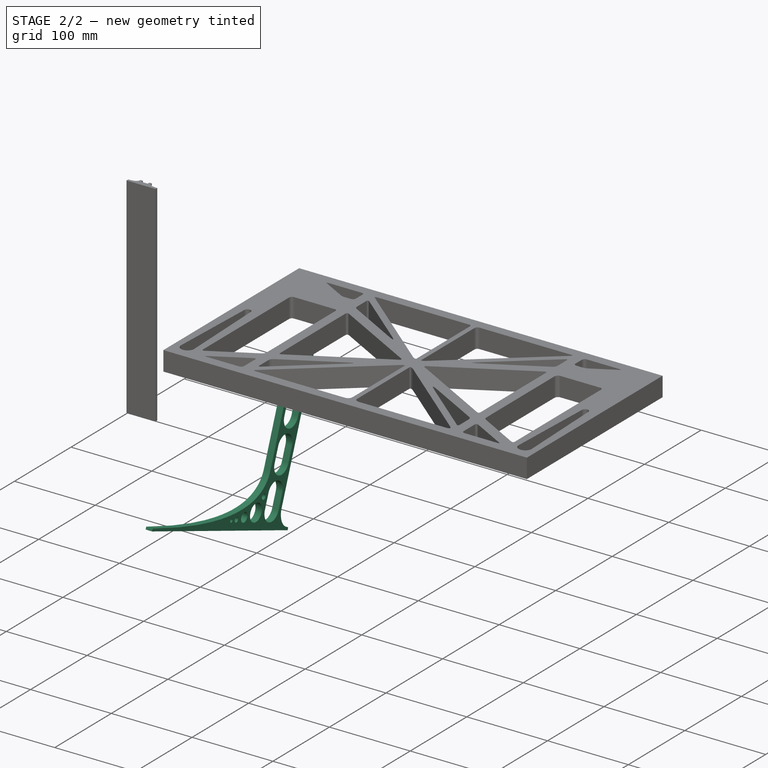
[diagram: stage 2 of 2 — iso view after this stage's code; geometry added in this stage tinted green]
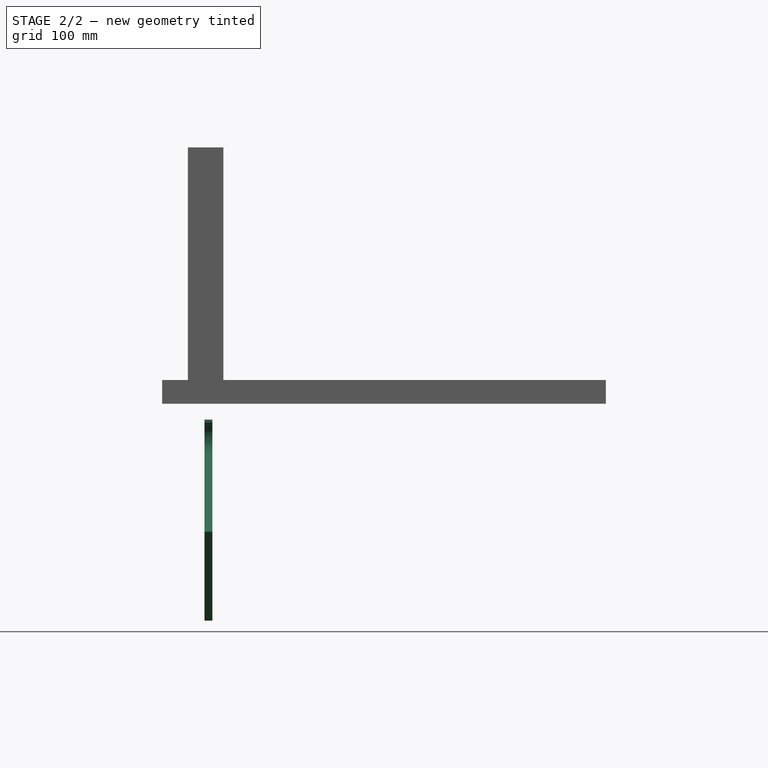
[diagram: stage 2 of 2 — front view after this stage's code; geometry added in this stage tinted green]
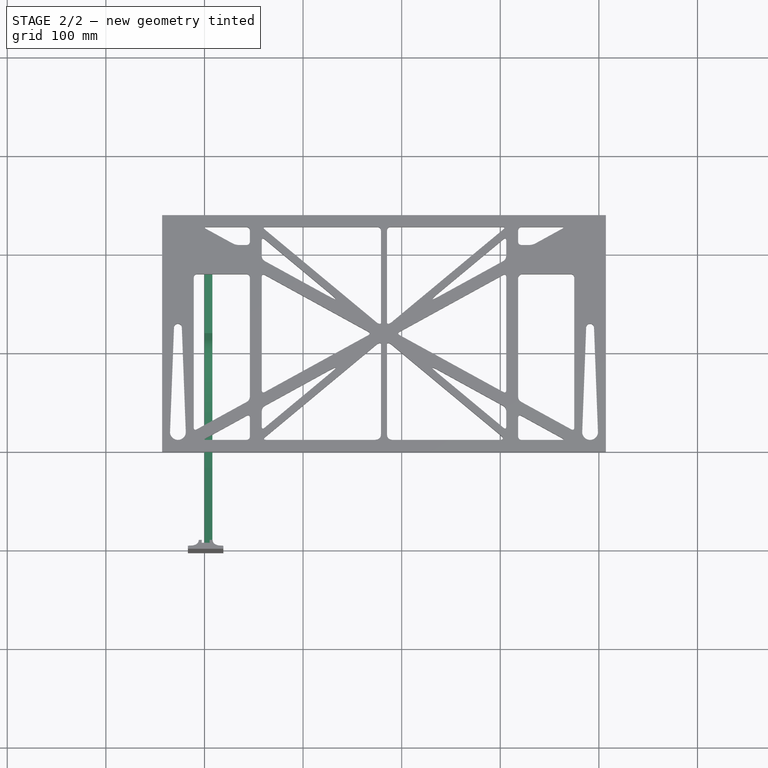
[diagram: stage 2 of 2 — top view after this stage's code; geometry added in this stage tinted green]
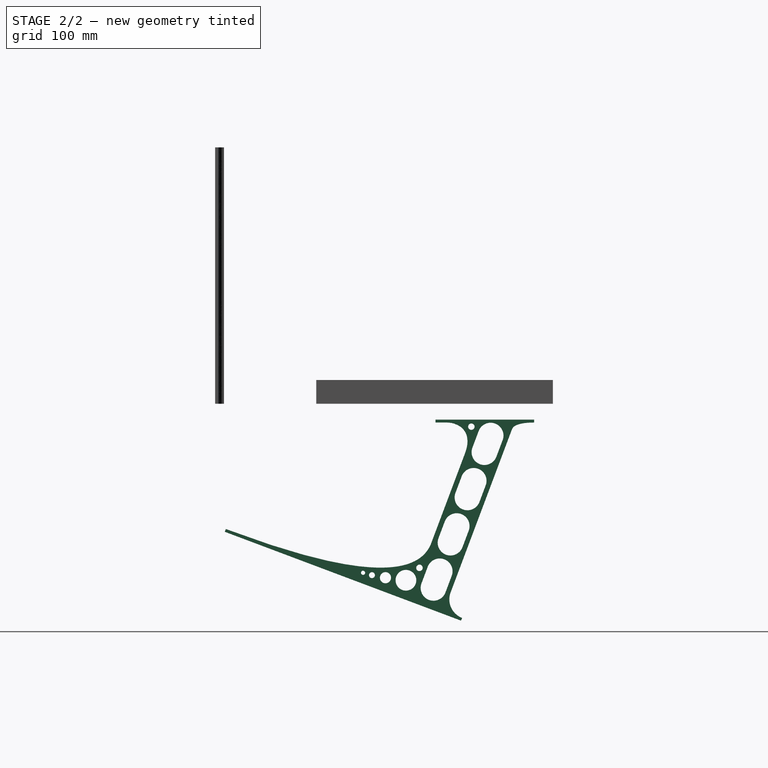
[diagram: stage 2 of 2 — right view after this stage's code; geometry added in this stage tinted green]
FEATURE [Sketcher::SketchObject] Sketch
  FullyConstrained = false
  sketch-geometry (349):
    g0: LineSegment StartX=-10.9272 StartY=-82.7794 StartZ=0 EndX=46.0728 EndY=-51.4823 EndZ=0
    g1: LineSegment StartX=-10.9272 StartY=76.4095 StartZ=0 EndX=-10.9272 EndY=-82.7794 EndZ=0
    g2: LineSegment StartX=46.0728 StartY=76.4095 StartZ=0 EndX=46.0728 EndY=-51.4823 EndZ=0
    g3: LineSegment StartX=-42.9272 StartY=136.221 StartZ=0 EndX=-42.9272 EndY=-103.779 EndZ=0
    g4: LineSegment StartX=407.073 StartY=136.221 StartZ=0 EndX=407.073 EndY=-103.779 EndZ=0
    g5: ArcOfCircle CenterX=-26.9272 CenterY=-83.7794 CenterZ=0 NormalX=0 NormalY=0 NormalZ=1 AngleXU=0 Radius=8 StartAngle=3.14159 EndAngle=6.28319
    g6: ArcOfCircle CenterX=391.073 CenterY=22.1087 CenterZ=0 NormalX=0 NormalY=0 NormalZ=1 AngleXU=0 Radius=8 StartAngle=-4.4e-15 EndAngle=3.14159
    g7: LineSegment StartX=399.073 StartY=22.1087 StartZ=0 EndX=399.073 EndY=-83.7794 EndZ=0
    g8: LineSegment StartX=383.073 StartY=22.1087 StartZ=0 EndX=383.073 EndY=-83.7794 EndZ=0
    g9: ArcOfCircle CenterX=391.073 CenterY=-83.7794 CenterZ=0 NormalX=0 NormalY=0 NormalZ=1 AngleXU=0 Radius=8 StartAngle=3.14159 EndAngle=6.28319
    g10: Circle CenterX=175.022 CenterY=27.0628 CenterZ=0 NormalX=0 NormalY=0 NormalZ=1 AngleXU=0 Radius=1
    g11: Circle CenterX=179.022 CenterY=24.8665 CenterZ=0 NormalX=0 NormalY=0 NormalZ=1 AngleXU=0 Radius=1
    g12: Circle CenterX=179.022 CenterY=27.0628 CenterZ=0 NormalX=0 NormalY=0 NormalZ=1 AngleXU=0 Radius=1
    g13: BSplineCurve PolesCount=3 KnotsCount=2 Degree=2 IsPeriodic=0
    g14: GeomPoint X=175.022 Y=27.0628 Z=0
    g15: GeomPoint X=179.022 Y=27.0628 Z=0
    g16: Circle CenterX=189.124 CenterY=27.0628 CenterZ=0 NormalX=0 NormalY=0 NormalZ=1 AngleXU=0 Radius=1
    g17: Circle CenterX=185.124 CenterY=24.8665 CenterZ=0 NormalX=0 NormalY=0 NormalZ=1 AngleXU=0 Radius=1
    g18: Circle CenterX=185.124 CenterY=27.0628 CenterZ=0 NormalX=0 NormalY=0 NormalZ=1 AngleXU=0 Radius=1
    g19: BSplineCurve PolesCount=3 KnotsCount=2 Degree=2 IsPeriodic=0
    g20: GeomPoint X=189.124 Y=27.0628 Z=0
    g21: GeomPoint X=185.124 Y=27.0628 Z=0
    g22: Circle CenterX=175.022 CenterY=5.37834 CenterZ=0 NormalX=0 NormalY=0 NormalZ=1 AngleXU=0 Radius=1
    g23: Circle CenterX=179.022 CenterY=7.57463 CenterZ=0 NormalX=0 NormalY=0 NormalZ=1 AngleXU=0 Radius=1
    g24: Circle CenterX=179.022 CenterY=5.34704 CenterZ=0 NormalX=0 NormalY=0 NormalZ=1 AngleXU=0 Radius=1
    g25: BSplineCurve PolesCount=3 KnotsCount=2 Degree=2 IsPeriodic=0
    g26: GeomPoint X=175.022 Y=5.37834 Z=0
    g27: GeomPoint X=179.022 Y=5.34704 Z=0
    g28: Circle CenterX=189.124 CenterY=5.37834 CenterZ=0 NormalX=0 NormalY=0 NormalZ=1 AngleXU=0 Radius=1
    g29: Circle CenterX=185.124 CenterY=7.57463 CenterZ=0 NormalX=0 NormalY=0 NormalZ=1 AngleXU=0 Radius=1
    g30: Circle CenterX=185.124 CenterY=5.34704 CenterZ=0 NormalX=0 NormalY=0 NormalZ=1 AngleXU=0 Radius=1
    g31: BSplineCurve PolesCount=3 KnotsCount=2 Degree=2 IsPeriodic=0
    g32: GeomPoint X=189.124 Y=5.37834 Z=0
    g33: GeomPoint X=185.124 Y=5.34704 Z=0
    g34: Circle CenterX=165.871 CenterY=18.1458 CenterZ=0 NormalX=0 NormalY=0 NormalZ=1 AngleXU=0 Radius=1
    g35: Circle CenterX=169.377 CenterY=16.2206 CenterZ=0 NormalX=0 NormalY=0 NormalZ=1 AngleXU=0 Radius=1
    g36: Circle CenterX=165.871 CenterY=14.2954 CenterZ=0 NormalX=0 NormalY=0 NormalZ=1 AngleXU=0 Radius=1
    g37: BSplineCurve PolesCount=3 KnotsCount=2 Degree=2 IsPeriodic=0
    g38: GeomPoint X=165.871 Y=18.1458 Z=0
    g39: GeomPoint X=165.871 Y=14.2954 Z=0
    g40: Circle CenterX=198.275 CenterY=18.1458 CenterZ=0 NormalX=0 NormalY=0 NormalZ=1 AngleXU=0 Radius=1
    g41: Circle CenterX=194.768 CenterY=16.2206 CenterZ=0 NormalX=0 NormalY=0 NormalZ=1 AngleXU=0 Radius=1
    g42: Circle CenterX=198.275 CenterY=14.2954 CenterZ=0 NormalX=0 NormalY=0 NormalZ=1 AngleXU=0 Radius=1
    g43: BSplineCurve PolesCount=3 KnotsCount=2 Degree=2 IsPeriodic=0
    g44: GeomPoint X=198.275 Y=18.1458 Z=0
    g45: GeomPoint X=198.275 Y=14.2954 Z=0
    g46: LineSegment StartX=407.073 StartY=-103.779 StartZ=0 EndX=-42.9272 EndY=-103.779 EndZ=0
    g47: LineSegment StartX=407.073 StartY=136.221 StartZ=0 EndX=-42.9272 EndY=136.221 EndZ=0
    g48: LineSegment StartX=46.0728 StartY=76.4095 StartZ=0 EndX=-10.9272 EndY=76.4095 EndZ=0
    g49: Circle CenterX=125.607 CenterY=54.1951 CenterZ=0 NormalX=0 NormalY=0 NormalZ=1 AngleXU=0 Radius=1
    g50: Circle CenterX=139.632 CenterY=46.4944 CenterZ=0 NormalX=0 NormalY=0 NormalZ=1 AngleXU=0 Radius=1
    g51: Circle CenterX=127.326 CenterY=56.7187 CenterZ=0 NormalX=0 NormalY=0 NormalZ=1 AngleXU=0 Radius=1
    g52: BSplineCurve PolesCount=3 KnotsCount=2 Degree=2 IsPeriodic=0
    g53: GeomPoint X=125.607 Y=54.1951 Z=0
    g54: GeomPoint X=127.326 Y=56.7187 Z=0
    g55: Circle CenterX=236.821 CenterY=56.7187 CenterZ=0 NormalX=0 NormalY=0 NormalZ=1 AngleXU=0 Radius=1
    g56: Circle CenterX=224.513 CenterY=46.4944 CenterZ=0 NormalX=0 NormalY=0 NormalZ=1 AngleXU=0 Radius=1
    g57: Circle CenterX=238.538 CenterY=54.1951 CenterZ=0 NormalX=0 NormalY=0 NormalZ=1 AngleXU=0 Radius=1
    g58: BSplineCurve PolesCount=3 KnotsCount=2 Degree=2 IsPeriodic=0
    g59: GeomPoint X=236.821 Y=56.7187 Z=0
    g60: GeomPoint X=238.538 Y=54.1951 Z=0
    g61: Circle CenterX=238.538 CenterY=-21.7539 CenterZ=0 NormalX=0 NormalY=0 NormalZ=1 AngleXU=0 Radius=1
    g62: Circle CenterX=224.513 CenterY=-14.0532 CenterZ=0 NormalX=0 NormalY=0 NormalZ=1 AngleXU=0 Radius=1
    g63: Circle CenterX=236.821 CenterY=-24.2775 CenterZ=0 NormalX=0 NormalY=0 NormalZ=1 AngleXU=0 Radius=1
    g64: BSplineCurve PolesCount=3 KnotsCount=2 Degree=2 IsPeriodic=0
    g65: GeomPoint X=238.538 Y=-21.7539 Z=0
    g66: GeomPoint X=236.821 Y=-24.2775 Z=0
    g67: Circle CenterX=125.607 CenterY=-21.7539 CenterZ=0 NormalX=0 NormalY=0 NormalZ=1 AngleXU=0 Radius=1
    g68: Circle CenterX=139.632 CenterY=-14.0532 CenterZ=0 NormalX=0 NormalY=0 NormalZ=1 AngleXU=0 Radius=1
    g69: Circle CenterX=127.325 CenterY=-24.2775 CenterZ=0 NormalX=0 NormalY=0 NormalZ=1 AngleXU=0 Radius=1
    g70: BSplineCurve PolesCount=3 KnotsCount=2 Degree=2 IsPeriodic=0
    g71: GeomPoint X=125.607 Y=-21.7539 Z=0
    g72: GeomPoint X=127.325 Y=-24.2775 Z=0
    g73: Circle CenterX=302.996 CenterY=111.695 CenterZ=0 NormalX=0 NormalY=0 NormalZ=1 AngleXU=0 Radius=1
    g74: Circle CenterX=306.073 CenterY=114.251 CenterZ=0 NormalX=0 NormalY=0 NormalZ=1 AngleXU=0 Radius=1
    g75: Circle CenterX=306.073 CenterY=110.251 CenterZ=0 NormalX=0 NormalY=0 NormalZ=1 AngleXU=0 Radius=1
    g76: BSplineCurve PolesCount=3 KnotsCount=2 Degree=2 IsPeriodic=0
    g77: GeomPoint X=302.996 Y=111.695 Z=0
    g78: GeomPoint X=306.073 Y=110.251 Z=0
    g79: Circle CenterX=306.073 CenterY=95.2763 CenterZ=0 NormalX=0 NormalY=0 NormalZ=1 AngleXU=0 Radius=1
    g80: Circle CenterX=306.073 CenterY=91.2763 CenterZ=0 NormalX=0 NormalY=0 NormalZ=1 AngleXU=0 Radius=1
    g81: Circle CenterX=302.567 CenterY=89.3511 CenterZ=0 NormalX=0 NormalY=0 NormalZ=1 AngleXU=0 Radius=1
    g82: BSplineCurve PolesCount=3 KnotsCount=2 Degree=2 IsPeriodic=0
    g83: GeomPoint X=306.073 Y=95.2763 Z=0
    g84: GeomPoint X=302.567 Y=89.3511 Z=0
    g85: LineSegment StartX=306.073 StartY=110.251 StartZ=0 EndX=306.073 EndY=95.2763 EndZ=0
    g86: LineSegment StartX=302.996 StartY=111.695 StartZ=0 EndX=236.821 EndY=56.7187 EndZ=0
    g87: LineSegment StartX=238.538 StartY=54.1951 StartZ=0 EndX=302.567 EndY=89.3511 EndZ=0
    g88: Circle CenterX=61.1496 CenterY=111.695 CenterZ=0 NormalX=0 NormalY=0 NormalZ=1 AngleXU=0 Radius=1
    g89: Circle CenterX=58.0728 CenterY=114.251 CenterZ=0 NormalX=0 NormalY=0 NormalZ=1 AngleXU=0 Radius=1
    g90: Circle CenterX=58.0728 CenterY=110.251 CenterZ=0 NormalX=0 NormalY=0 NormalZ=1 AngleXU=0 Radius=1
    g91: BSplineCurve PolesCount=3 KnotsCount=2 Degree=2 IsPeriodic=0
    g92: GeomPoint X=61.1496 Y=111.695 Z=0
    g93: GeomPoint X=58.0728 Y=110.251 Z=0
    g94: Circle CenterX=61.5791 CenterY=89.3511 CenterZ=0 NormalX=0 NormalY=0 NormalZ=1 AngleXU=0 Radius=1
    g95: Circle CenterX=58.0728 CenterY=91.2763 CenterZ=0 NormalX=0 NormalY=0 NormalZ=1 AngleXU=0 Radius=1
    g96: Circle CenterX=58.0728 CenterY=95.2763 CenterZ=0 NormalX=0 NormalY=0 NormalZ=1 AngleXU=0 Radius=1
    g97: BSplineCurve PolesCount=3 KnotsCount=2 Degree=2 IsPeriodic=0
    g98: GeomPoint X=61.5791 Y=89.3511 Z=0
    g99: GeomPoint X=58.0728 Y=95.2763 Z=0
    g100: LineSegment StartX=58.0728 StartY=110.251 StartZ=0 EndX=58.0728 EndY=95.2763 EndZ=0
    g101: LineSegment StartX=61.1496 StartY=111.695 StartZ=0 EndX=127.326 EndY=56.7187 EndZ=0
    g102: LineSegment StartX=125.607 StartY=54.1951 StartZ=0 EndX=61.5791 EndY=89.3511 EndZ=0
    g103: Circle CenterX=61.5791 CenterY=-56.9099 CenterZ=0 NormalX=0 NormalY=0 NormalZ=1 AngleXU=0 Radius=1
    g104: Circle CenterX=58.0728 CenterY=-58.8351 CenterZ=0 NormalX=0 NormalY=0 NormalZ=1 AngleXU=0 Radius=1
    g105: Circle CenterX=58.0728 CenterY=-62.8351 CenterZ=0 NormalX=0 NormalY=0 NormalZ=1 AngleXU=0 Radius=1
    g106: BSplineCurve PolesCount=3 KnotsCount=2 Degree=2 IsPeriodic=0
    g107: GeomPoint X=61.5791 Y=-56.9099 Z=0
    g108: GeomPoint X=58.0728 Y=-62.8351 Z=0
    g109: Circle CenterX=58.0728 CenterY=-77.8102 CenterZ=0 NormalX=0 NormalY=0 NormalZ=1 AngleXU=0 Radius=1
    g110: Circle CenterX=58.0728 CenterY=-81.8102 CenterZ=0 NormalX=0 NormalY=0 NormalZ=1 AngleXU=0 Radius=1
    g111: Circle CenterX=61.1496 CenterY=-79.2541 CenterZ=0 NormalX=0 NormalY=0 NormalZ=1 AngleXU=0 Radius=1
    g112: BSplineCurve PolesCount=3 KnotsCount=2 Degree=2 IsPeriodic=0
    g113: GeomPoint X=58.0728 Y=-77.8102 Z=0
    g114: GeomPoint X=61.1496 Y=-79.2541 Z=0
    g115: LineSegment StartX=58.0728 StartY=-62.8351 StartZ=0 EndX=58.0728 EndY=-77.8102 EndZ=0
    g116: LineSegment StartX=61.1496 StartY=-79.2541 StartZ=0 EndX=127.325 EndY=-24.2775 EndZ=0
    g117: LineSegment StartX=125.607 StartY=-21.7539 StartZ=0 EndX=61.5791 EndY=-56.9099 EndZ=0
    g118: Circle CenterX=302.567 CenterY=-56.9099 CenterZ=0 NormalX=0 NormalY=0 NormalZ=1 AngleXU=0 Radius=1
    g119: Circle CenterX=306.073 CenterY=-58.8351 CenterZ=0 NormalX=0 NormalY=0 NormalZ=1 AngleXU=0 Radius=1
    g120: Circle CenterX=306.073 CenterY=-62.8351 CenterZ=0 NormalX=0 NormalY=0 NormalZ=1 AngleXU=0 Radius=1
    g121: BSplineCurve PolesCount=3 KnotsCount=2 Degree=2 IsPeriodic=0
    g122: GeomPoint X=302.567 Y=-56.9099 Z=0
    g123: GeomPoint X=306.073 Y=-62.8351 Z=0
    g124: Circle CenterX=302.996 CenterY=-79.2541 CenterZ=0 NormalX=0 NormalY=0 NormalZ=1 AngleXU=0 Radius=1
    g125: Circle CenterX=306.073 CenterY=-81.8102 CenterZ=0 NormalX=0 NormalY=0 NormalZ=1 AngleXU=0 Radius=1
    g126: Circle CenterX=306.073 CenterY=-77.8102 CenterZ=0 NormalX=0 NormalY=0 NormalZ=1 AngleXU=0 Radius=1
    g127: BSplineCurve PolesCount=3 KnotsCount=2 Degree=2 IsPeriodic=0
    g128: GeomPoint X=302.996 Y=-79.2541 Z=0
    g129: GeomPoint X=306.073 Y=-77.8102 Z=0
    g130: LineSegment StartX=306.073 StartY=-62.8351 StartZ=0 EndX=306.073 EndY=-77.8102 EndZ=0
    g131: LineSegment StartX=302.996 StartY=-79.2541 StartZ=0 EndX=236.821 EndY=-24.2775 EndZ=0
    g132: LineSegment StartX=238.538 StartY=-21.7539 StartZ=0 EndX=302.567 EndY=-56.9099 EndZ=0
    g133: Circle CenterX=61.6457 CenterY=-88.8112 CenterZ=0 NormalX=0 NormalY=0 NormalZ=1 AngleXU=0 Radius=1
    g134: Circle CenterX=58.0728 CenterY=-91.7794 CenterZ=0 NormalX=0 NormalY=0 NormalZ=1 AngleXU=0 Radius=1
    g135: Circle CenterX=63.9135 CenterY=-91.7794 CenterZ=0 NormalX=0 NormalY=0 NormalZ=1 AngleXU=0 Radius=1
    g136: BSplineCurve PolesCount=3 KnotsCount=2 Degree=2 IsPeriodic=0
    g137: GeomPoint X=61.6457 Y=-88.8112 Z=0
    g138: GeomPoint X=63.9135 Y=-91.7794 Z=0
    g139: Circle CenterX=179.022 CenterY=-85.8163 CenterZ=0 NormalX=0 NormalY=0 NormalZ=1 AngleXU=0 Radius=1
    g140: Circle CenterX=179.022 CenterY=-91.7794 CenterZ=0 NormalX=0 NormalY=0 NormalZ=1 AngleXU=0 Radius=1
    g141: Circle CenterX=171.895 CenterY=-91.7794 CenterZ=0 NormalX=0 NormalY=0 NormalZ=1 AngleXU=0 Radius=1
    g142: BSplineCurve PolesCount=3 KnotsCount=2 Degree=2 IsPeriodic=0
    g143: GeomPoint X=179.022 Y=-85.8163 Z=0
    g144: GeomPoint X=171.895 Y=-91.7794 Z=0
    g145: Circle CenterX=185.124 CenterY=-86.2028 CenterZ=0 NormalX=0 NormalY=0 NormalZ=1 AngleXU=0 Radius=1
    g146: Circle CenterX=185.124 CenterY=-91.7794 CenterZ=0 NormalX=0 NormalY=0 NormalZ=1 AngleXU=0 Radius=1
    g147: Circle CenterX=191.747 CenterY=-91.7794 CenterZ=0 NormalX=0 NormalY=0 NormalZ=1 AngleXU=0 Radius=1
    g148: BSplineCurve PolesCount=3 KnotsCount=2 Degree=2 IsPeriodic=0
    g149: GeomPoint X=185.124 Y=-86.2028 Z=0
    g150: GeomPoint X=191.747 Y=-91.7794 Z=0
    g151: Circle CenterX=299.888 CenterY=-86.6413 CenterZ=0 NormalX=0 NormalY=0 NormalZ=1 AngleXU=0 Radius=1
    g152: Circle CenterX=306.073 CenterY=-91.7794 CenterZ=0 NormalX=0 NormalY=0 NormalZ=1 AngleXU=0 Radius=1
    g153: Circle CenterX=298.776 CenterY=-91.7794 CenterZ=0 NormalX=0 NormalY=0 NormalZ=1 AngleXU=0 Radius=1
    g154: BSplineCurve PolesCount=3 KnotsCount=2 Degree=2 IsPeriodic=0
    g155: GeomPoint X=299.888 Y=-86.6413 Z=0
    g156: GeomPoint X=298.776 Y=-91.7794 Z=0
    g157: LineSegment StartX=189.124 StartY=5.37834 StartZ=0 EndX=299.888 EndY=-86.6413 EndZ=0
    g158: LineSegment StartX=298.776 StartY=-91.7794 StartZ=0 EndX=191.747 EndY=-91.7794 EndZ=0
    g159: LineSegment StartX=185.124 StartY=-86.2028 StartZ=0 EndX=185.124 EndY=5.34704 EndZ=0
    g160: LineSegment StartX=179.022 StartY=5.34704 StartZ=0 EndX=179.022 EndY=-85.8163 EndZ=0
    g161: LineSegment StartX=171.895 StartY=-91.7794 StartZ=0 EndX=63.9135 EndY=-91.7794 EndZ=0
    g162: LineSegment StartX=61.6457 StartY=-88.8112 StartZ=0 EndX=175.022 EndY=5.37834 EndZ=0
    g163: Circle CenterX=302.073 CenterY=124.221 CenterZ=0 NormalX=0 NormalY=0 NormalZ=1 AngleXU=0 Radius=1
    g164: Circle CenterX=306.073 CenterY=124.221 CenterZ=0 NormalX=0 NormalY=0 NormalZ=1 AngleXU=0 Radius=1
    g165: Circle CenterX=302.996 CenterY=121.665 CenterZ=0 NormalX=0 NormalY=0 NormalZ=1 AngleXU=0 Radius=1
    g166: BSplineCurve PolesCount=3 KnotsCount=2 Degree=2 IsPeriodic=0
    g167: GeomPoint X=302.073 Y=124.221 Z=0
    g168: GeomPoint X=302.996 Y=121.665 Z=0
    g169: Circle CenterX=189.124 CenterY=124.221 CenterZ=0 NormalX=0 NormalY=0 NormalZ=1 AngleXU=0 Radius=1
    g170: Circle CenterX=185.124 CenterY=124.221 CenterZ=0 NormalX=0 NormalY=0 NormalZ=1 AngleXU=0 Radius=1
    g171: Circle CenterX=185.124 CenterY=120.221 CenterZ=0 NormalX=0 NormalY=0 NormalZ=1 AngleXU=0 Radius=1
    g172: BSplineCurve PolesCount=3 KnotsCount=2 Degree=2 IsPeriodic=0
    g173: GeomPoint X=189.124 Y=124.221 Z=0
    g174: GeomPoint X=185.124 Y=120.221 Z=0
    g175: Circle CenterX=175.022 CenterY=124.221 CenterZ=0 NormalX=0 NormalY=0 NormalZ=1 AngleXU=0 Radius=1
    g176: Circle CenterX=179.022 CenterY=124.221 CenterZ=0 NormalX=0 NormalY=0 NormalZ=1 AngleXU=0 Radius=1
    g177: Circle CenterX=179.022 CenterY=120.221 CenterZ=0 NormalX=0 NormalY=0 NormalZ=1 AngleXU=0 Radius=1
    g178: BSplineCurve PolesCount=3 KnotsCount=2 Degree=2 IsPeriodic=0
    g179: GeomPoint X=175.022 Y=124.221 Z=0
    g180: GeomPoint X=179.022 Y=120.221 Z=0
    g181: Circle CenterX=62.0728 CenterY=124.221 CenterZ=0 NormalX=0 NormalY=0 NormalZ=1 AngleXU=0 Radius=1
    g182: Circle CenterX=58.0728 CenterY=124.221 CenterZ=0 NormalX=0 NormalY=0 NormalZ=1 AngleXU=0 Radius=1
    g183: Circle CenterX=61.1496 CenterY=121.665 CenterZ=0 NormalX=0 NormalY=0 NormalZ=1 AngleXU=0 Radius=1
    g184: BSplineCurve PolesCount=3 KnotsCount=2 Degree=2 IsPeriodic=0
    g185: GeomPoint X=62.0728 Y=124.221 Z=0
    g186: GeomPoint X=61.1496 Y=121.665 Z=0
    g187: LineSegment StartX=62.0728 StartY=124.221 StartZ=0 EndX=175.022 EndY=124.221 EndZ=0
    g188: LineSegment StartX=179.022 StartY=120.221 StartZ=0 EndX=179.022 EndY=27.0628 EndZ=0
    g189: LineSegment StartX=185.124 StartY=27.0628 StartZ=0 EndX=185.124 EndY=120.221 EndZ=0
    g190: LineSegment StartX=189.124 StartY=124.221 StartZ=0 EndX=302.073 EndY=124.221 EndZ=0
    g191: LineSegment StartX=302.996 StartY=121.665 StartZ=0 EndX=189.124 EndY=27.0628 EndZ=0
    g192: LineSegment StartX=175.022 StartY=27.0628 StartZ=0 EndX=61.1496 EndY=121.665 EndZ=0
    g193: Circle CenterX=61.5791 CenterY=75.4095 CenterZ=0 NormalX=0 NormalY=0 NormalZ=1 AngleXU=0 Radius=1
    g194: Circle CenterX=58.0728 CenterY=77.3346 CenterZ=0 NormalX=0 NormalY=0 NormalZ=1 AngleXU=0 Radius=1
    g195: Circle CenterX=58.0728 CenterY=73.3346 CenterZ=0 NormalX=0 NormalY=0 NormalZ=1 AngleXU=0 Radius=1
    g196: BSplineCurve PolesCount=3 KnotsCount=2 Degree=2 IsPeriodic=0
    g197: GeomPoint X=61.5791 Y=75.4095 Z=0
    g198: GeomPoint X=58.0728 Y=73.3346 Z=0
    g199: Circle CenterX=58.0728 CenterY=-40.8935 CenterZ=0 NormalX=0 NormalY=0 NormalZ=1 AngleXU=0 Radius=1
    g200: Circle CenterX=58.0728 CenterY=-44.8935 CenterZ=0 NormalX=0 NormalY=0 NormalZ=1 AngleXU=0 Radius=1
    g201: Circle CenterX=61.5791 CenterY=-42.9683 CenterZ=0 NormalX=0 NormalY=0 NormalZ=1 AngleXU=0 Radius=1
    g202: BSplineCurve PolesCount=3 KnotsCount=2 Degree=2 IsPeriodic=0
    g203: GeomPoint X=58.0728 Y=-40.8935 Z=0
    g204: GeomPoint X=61.5791 Y=-42.9683 Z=0
    g205: LineSegment StartX=61.5791 StartY=-42.9683 StartZ=0 EndX=165.871 EndY=14.2954 EndZ=0
    g206: LineSegment StartX=165.871 StartY=18.1458 StartZ=0 EndX=61.5791 EndY=75.4095 EndZ=0
    g207: LineSegment StartX=58.0728 StartY=73.3346 StartZ=0 EndX=58.0728 EndY=-40.8935 EndZ=0
    g208: Circle CenterX=302.567 CenterY=-42.9683 CenterZ=0 NormalX=0 NormalY=0 NormalZ=1 AngleXU=0 Radius=1
    g209: Circle CenterX=306.073 CenterY=-44.8935 CenterZ=0 NormalX=0 NormalY=0 NormalZ=1 AngleXU=0 Radius=1
    g210: Circle CenterX=306.073 CenterY=-40.8935 CenterZ=0 NormalX=0 NormalY=0 NormalZ=1 AngleXU=0 Radius=1
    g211: BSplineCurve PolesCount=3 KnotsCount=2 Degree=2 IsPeriodic=0
    g212: GeomPoint X=302.567 Y=-42.9683 Z=0
    g213: GeomPoint X=306.073 Y=-40.8935 Z=0
    g214: Circle CenterX=306.073 CenterY=73.3346 CenterZ=0 NormalX=0 NormalY=0 NormalZ=1 AngleXU=0 Radius=1
    g215: Circle CenterX=306.073 CenterY=77.3346 CenterZ=0 NormalX=0 NormalY=0 NormalZ=1 AngleXU=0 Radius=1
    g216: Circle CenterX=302.567 CenterY=75.4095 CenterZ=0 NormalX=0 NormalY=0 NormalZ=1 AngleXU=0 Radius=1
    g217: BSplineCurve PolesCount=3 KnotsCount=2 Degree=2 IsPeriodic=0
    g218: GeomPoint X=306.073 Y=73.3346 Z=0
    g219: GeomPoint X=302.567 Y=75.4095 Z=0
    g220: LineSegment StartX=302.567 StartY=-42.9683 StartZ=0 EndX=198.275 EndY=14.2954 EndZ=0
    g221: LineSegment StartX=198.275 StartY=18.1458 StartZ=0 EndX=302.567 EndY=75.4095 EndZ=0
    g222: LineSegment StartX=306.073 StartY=73.3346 StartZ=0 EndX=306.073 EndY=-40.8935 EndZ=0
    g223: LineSegment StartX=322.073 StartY=105.865 StartZ=0 EndX=328.643 EndY=105.865 EndZ=0
    g224: LineSegment StartX=318.073 StartY=120.221 StartZ=0 EndX=318.073 EndY=109.865 EndZ=0
    g225: LineSegment StartX=336.157 StartY=107.779 StartZ=0 EndX=362.567 EndY=122.294 EndZ=0
    g226: Circle CenterX=362.073 CenterY=124.221 CenterZ=0 NormalX=0 NormalY=0 NormalZ=1 AngleXU=0 Radius=1
    g227: Circle CenterX=366.073 CenterY=124.221 CenterZ=0 NormalX=0 NormalY=0 NormalZ=1 AngleXU=0 Radius=1
    g228: Circle CenterX=362.567 CenterY=122.294 CenterZ=0 NormalX=0 NormalY=0 NormalZ=1 AngleXU=0 Radius=1
    g229: BSplineCurve PolesCount=3 KnotsCount=2 Degree=2 IsPeriodic=0
    g230: GeomPoint X=362.073 Y=124.221 Z=0
    g231: GeomPoint X=362.567 Y=122.294 Z=0
    g232: Circle CenterX=322.073 CenterY=124.221 CenterZ=0 NormalX=0 NormalY=0 NormalZ=1 AngleXU=0 Radius=1
    g233: Circle CenterX=318.073 CenterY=124.221 CenterZ=0 NormalX=0 NormalY=0 NormalZ=1 AngleXU=0 Radius=1
    g234: Circle CenterX=318.073 CenterY=120.221 CenterZ=0 NormalX=0 NormalY=0 NormalZ=1 AngleXU=0 Radius=1
    g235: BSplineCurve PolesCount=3 KnotsCount=2 Degree=2 IsPeriodic=0
    g236: GeomPoint X=322.073 Y=124.221 Z=0
    g237: GeomPoint X=318.073 Y=120.221 Z=0
    g238: Circle CenterX=322.073 CenterY=105.865 CenterZ=0 NormalX=0 NormalY=0 NormalZ=1 AngleXU=0 Radius=1
    g239: Circle CenterX=318.073 CenterY=105.865 CenterZ=0 NormalX=0 NormalY=0 NormalZ=1 AngleXU=0 Radius=1
    g240: Circle CenterX=318.073 CenterY=109.865 CenterZ=0 NormalX=0 NormalY=0 NormalZ=1 AngleXU=0 Radius=1
    g241: BSplineCurve PolesCount=3 KnotsCount=2 Degree=2 IsPeriodic=0
    g242: GeomPoint X=322.073 Y=105.865 Z=0
    g243: GeomPoint X=318.073 Y=109.865 Z=0
    g244: Circle CenterX=336.157 CenterY=107.779 CenterZ=0 NormalX=0 NormalY=0 NormalZ=1 AngleXU=0 Radius=1
    g245: Circle CenterX=332.651 CenterY=105.853 CenterZ=0 NormalX=0 NormalY=0 NormalZ=1 AngleXU=0 Radius=1
    g246: Circle CenterX=328.643 CenterY=105.865 CenterZ=0 NormalX=0 NormalY=0 NormalZ=1 AngleXU=0 Radius=1
    g247: BSplineCurve PolesCount=3 KnotsCount=2 Degree=2 IsPeriodic=0
    g248: GeomPoint X=336.157 Y=107.779 Z=0
    g249: GeomPoint X=328.643 Y=105.865 Z=0
    g250: LineSegment StartX=322.073 StartY=124.221 StartZ=0 EndX=362.073 EndY=124.221 EndZ=0
    g251: Circle CenterX=371.567 CenterY=-80.8644 CenterZ=0 NormalX=0 NormalY=0 NormalZ=1 AngleXU=0 Radius=1
    g252: Circle CenterX=375.073 CenterY=-82.7896 CenterZ=0 NormalX=0 NormalY=0 NormalZ=1 AngleXU=0 Radius=1
    g253: Circle CenterX=375.073 CenterY=-78.7896 CenterZ=0 NormalX=0 NormalY=0 NormalZ=1 AngleXU=0 Radius=1
    g254: BSplineCurve PolesCount=3 KnotsCount=2 Degree=2 IsPeriodic=0
    g255: GeomPoint X=371.567 Y=-80.8644 Z=0
    g256: GeomPoint X=375.073 Y=-78.7896 Z=0
    g257: Circle CenterX=321.579 CenterY=-53.4075 CenterZ=0 NormalX=0 NormalY=0 NormalZ=1 AngleXU=0 Radius=1
    g258: Circle CenterX=318.073 CenterY=-51.4823 CenterZ=0 NormalX=0 NormalY=0 NormalZ=1 AngleXU=0 Radius=1
    g259: Circle CenterX=318.073 CenterY=-47.4805 CenterZ=0 NormalX=0 NormalY=0 NormalZ=1 AngleXU=0 Radius=1
    g260: BSplineCurve PolesCount=3 KnotsCount=2 Degree=2 IsPeriodic=0
    g261: GeomPoint X=321.579 Y=-53.4075 Z=0
    g262: GeomPoint X=318.073 Y=-47.4805 Z=0
    g263: LineSegment StartX=371.567 StartY=-80.8644 StartZ=0 EndX=321.579 EndY=-53.4075 EndZ=0
    g264: Circle CenterX=321.579 CenterY=-67.3492 CenterZ=0 NormalX=0 NormalY=0 NormalZ=1 AngleXU=0 Radius=1
    g265: Circle CenterX=318.073 CenterY=-65.424 CenterZ=0 NormalX=0 NormalY=0 NormalZ=1 AngleXU=0 Radius=1
    g266: Circle CenterX=318.073 CenterY=-69.424 CenterZ=0 NormalX=0 NormalY=0 NormalZ=1 AngleXU=0 Radius=1
    g267: BSplineCurve PolesCount=3 KnotsCount=2 Degree=2 IsPeriodic=0
    g268: GeomPoint X=321.579 Y=-67.3492 Z=0
    g269: GeomPoint X=318.073 Y=-69.424 Z=0
    g270: Circle CenterX=362.567 CenterY=-89.8542 CenterZ=0 NormalX=0 NormalY=0 NormalZ=1 AngleXU=0 Radius=1
    g271: Circle CenterX=366.073 CenterY=-91.7794 CenterZ=0 NormalX=0 NormalY=0 NormalZ=1 AngleXU=0 Radius=1
    g272: Circle CenterX=362.073 CenterY=-91.7794 CenterZ=0 NormalX=0 NormalY=0 NormalZ=1 AngleXU=0 Radius=1
    g273: BSplineCurve PolesCount=3 KnotsCount=2 Degree=2 IsPeriodic=0
    g274: GeomPoint X=362.567 Y=-89.8542 Z=0
    g275: GeomPoint X=362.073 Y=-91.7794 Z=0
    g276: Circle CenterX=322.073 CenterY=-91.7794 CenterZ=0 NormalX=0 NormalY=0 NormalZ=1 AngleXU=0 Radius=1
    g277: Circle CenterX=318.073 CenterY=-91.7794 CenterZ=0 NormalX=0 NormalY=0 NormalZ=1 AngleXU=0 Radius=1
    g278: Circle CenterX=318.073 CenterY=-87.7794 CenterZ=0 NormalX=0 NormalY=0 NormalZ=1 AngleXU=0 Radius=1
    g279: BSplineCurve PolesCount=3 KnotsCount=2 Degree=2 IsPeriodic=0
    g280: GeomPoint X=322.073 Y=-91.7794 Z=0
    g281: GeomPoint X=318.073 Y=-87.7794 Z=0
    g282: LineSegment StartX=362.567 StartY=-89.8542 StartZ=0 EndX=321.579 EndY=-67.3492 EndZ=0
    g283: LineSegment StartX=318.073 StartY=-69.424 StartZ=0 EndX=318.073 EndY=-87.7794 EndZ=0
    g284: LineSegment StartX=322.073 StartY=-91.7794 StartZ=0 EndX=362.073 EndY=-91.7794 EndZ=0
    g285: Circle CenterX=2.07281 CenterY=124.221 CenterZ=0 NormalX=0 NormalY=0 NormalZ=1 AngleXU=0 Radius=1
    g286: Circle CenterX=1.57905 CenterY=122.295 CenterZ=0 NormalX=0 NormalY=0 NormalZ=1 AngleXU=0 Radius=1
    g287: BSplineCurve PolesCount=3 KnotsCount=2 Degree=2 IsPeriodic=0
    g288: GeomPoint X=2.07281 Y=124.221 Z=0
    g289: GeomPoint X=1.57905 Y=122.295 Z=0
    g290: Circle CenterX=42.0728 CenterY=124.221 CenterZ=0 NormalX=0 NormalY=0 NormalZ=1 AngleXU=0 Radius=1
    g291: Circle CenterX=46.0728 CenterY=124.221 CenterZ=0 NormalX=0 NormalY=0 NormalZ=1 AngleXU=0 Radius=1
    g292: Circle CenterX=46.0728 CenterY=120.221 CenterZ=0 NormalX=0 NormalY=0 NormalZ=1 AngleXU=0 Radius=1
    g293: BSplineCurve PolesCount=3 KnotsCount=2 Degree=2 IsPeriodic=0
    g294: GeomPoint X=42.0728 Y=124.221 Z=0
    g295: GeomPoint X=46.0728 Y=120.221 Z=0
    g296: Circle CenterX=46.0728 CenterY=109.865 CenterZ=0 NormalX=0 NormalY=0 NormalZ=1 AngleXU=0 Radius=1
    g297: Circle CenterX=46.0728 CenterY=105.865 CenterZ=0 NormalX=0 NormalY=0 NormalZ=1 AngleXU=0 Radius=1
    g298: Circle CenterX=42.0728 CenterY=105.865 CenterZ=0 NormalX=0 NormalY=0 NormalZ=1 AngleXU=0 Radius=1
    g299: BSplineCurve PolesCount=3 KnotsCount=2 Degree=2 IsPeriodic=0
    g300: GeomPoint X=46.0728 Y=109.865 Z=0
    g301: GeomPoint X=42.0728 Y=105.865 Z=0
    g302: Circle CenterX=35.5028 CenterY=105.865 CenterZ=0 NormalX=0 NormalY=0 NormalZ=1 AngleXU=0 Radius=1
    g303: Circle CenterX=31.5028 CenterY=105.865 CenterZ=0 NormalX=0 NormalY=0 NormalZ=1 AngleXU=0 Radius=1
    g304: Circle CenterX=27.9965 CenterY=107.79 CenterZ=0 NormalX=0 NormalY=0 NormalZ=1 AngleXU=0 Radius=1
    g305: BSplineCurve PolesCount=3 KnotsCount=2 Degree=2 IsPeriodic=0
    g306: GeomPoint X=35.5028 Y=105.865 Z=0
    g307: GeomPoint X=27.9965 Y=107.79 Z=0
    g308: LineSegment StartX=2.07281 StartY=124.221 StartZ=0 EndX=42.0728 EndY=124.221 EndZ=0
    g309: LineSegment StartX=46.0728 StartY=120.221 StartZ=0 EndX=46.0728 EndY=109.865 EndZ=0
    g310: LineSegment StartX=42.0728 StartY=105.865 StartZ=0 EndX=35.5028 EndY=105.865 EndZ=0
    g311: LineSegment StartX=27.9965 StartY=107.79 StartZ=0 EndX=1.57905 EndY=122.295 EndZ=0
    g312: Circle CenterX=42.5666 CenterY=-67.3492 CenterZ=0 NormalX=0 NormalY=0 NormalZ=1 AngleXU=0 Radius=1
    g313: Circle CenterX=46.0728 CenterY=-65.424 CenterZ=0 NormalX=0 NormalY=0 NormalZ=1 AngleXU=0 Radius=1
    g314: Circle CenterX=46.0728 CenterY=-69.424 CenterZ=0 NormalX=0 NormalY=0 NormalZ=1 AngleXU=0 Radius=1
    g315: BSplineCurve PolesCount=3 KnotsCount=2 Degree=2 IsPeriodic=0
    g316: GeomPoint X=42.5666 Y=-67.3492 Z=0
    g317: GeomPoint X=46.0728 Y=-69.424 Z=0
    g318: Circle CenterX=46.0728 CenterY=-87.7794 CenterZ=0 NormalX=0 NormalY=0 NormalZ=1 AngleXU=0 Radius=1
    g319: Circle CenterX=46.0728 CenterY=-91.7794 CenterZ=0 NormalX=0 NormalY=0 NormalZ=1 AngleXU=0 Radius=1
    g320: Circle CenterX=42.0728 CenterY=-91.7794 CenterZ=0 NormalX=0 NormalY=0 NormalZ=1 AngleXU=0 Radius=1
    g321: BSplineCurve PolesCount=3 KnotsCount=2 Degree=2 IsPeriodic=0
    g322: GeomPoint X=46.0728 Y=-87.7794 Z=0
    g323: GeomPoint X=42.0728 Y=-91.7794 Z=0
    g324: Circle CenterX=2.07281 CenterY=-91.7794 CenterZ=0 NormalX=0 NormalY=0 NormalZ=1 AngleXU=0 Radius=1
    g325: Circle CenterX=-1.92719 CenterY=-91.7794 CenterZ=0 NormalX=0 NormalY=0 NormalZ=1 AngleXU=0 Radius=1
    g326: Circle CenterX=1.57905 CenterY=-89.8542 CenterZ=0 NormalX=0 NormalY=0 NormalZ=1 AngleXU=0 Radius=1
    g327: BSplineCurve PolesCount=3 KnotsCount=2 Degree=2 IsPeriodic=0
    g328: GeomPoint X=2.07281 Y=-91.7794 Z=0
    g329: GeomPoint X=1.57905 Y=-89.8542 Z=0
    g330: LineSegment StartX=2.07281 StartY=-91.7794 StartZ=0 EndX=42.0728 EndY=-91.7794 EndZ=0
    g331: LineSegment StartX=46.0728 StartY=-87.7794 StartZ=0 EndX=46.0728 EndY=-69.424 EndZ=0
    g332: LineSegment StartX=42.5666 StartY=-67.3492 StartZ=0 EndX=1.57905 EndY=-89.8542 EndZ=0
    g333: Circle CenterX=322.073 CenterY=76.4095 CenterZ=0 NormalX=0 NormalY=0 NormalZ=1 AngleXU=0 Radius=4
    g334: BSplineCurve PolesCount=3 KnotsCount=2 Degree=2 IsPeriodic=0
    g335: GeomPoint X=318.073 Y=72.4095 Z=0
    g336: GeomPoint X=322.073 Y=76.4095 Z=0
    g337: Circle CenterX=375.073 CenterY=72.4095 CenterZ=0 NormalX=0 NormalY=0 NormalZ=1 AngleXU=0 Radius=1
    g338: Circle CenterX=375.073 CenterY=76.4095 CenterZ=0 NormalX=0 NormalY=0 NormalZ=1 AngleXU=0 Radius=1
    g339: Circle CenterX=371.073 CenterY=76.4095 CenterZ=0 NormalX=0 NormalY=0 NormalZ=1 AngleXU=0 Radius=1
    g340: BSplineCurve PolesCount=3 KnotsCount=2 Degree=2 IsPeriodic=0
    g341: GeomPoint X=375.073 Y=72.4095 Z=0
    g342: GeomPoint X=371.073 Y=76.4095 Z=0
    g343: LineSegment StartX=322.073 StartY=76.4095 StartZ=0 EndX=371.073 EndY=76.4095 EndZ=0
    g344: LineSegment StartX=318.073 StartY=72.4095 StartZ=0 EndX=318.073 EndY=-47.4805 EndZ=0
    g345: LineSegment StartX=375.073 StartY=72.4095 StartZ=0 EndX=375.073 EndY=-78.7896 EndZ=0
    g346: ArcOfCircle CenterX=-26.9272 CenterY=22.1087 CenterZ=0 NormalX=0 NormalY=0 NormalZ=1 AngleXU=0 Radius=4 StartAngle=5e-16 EndAngle=3.14159
    g347: LineSegment StartX=-30.9272 StartY=22.1087 StartZ=0 EndX=-34.9272 EndY=-83.7794 EndZ=0
    g348: LineSegment StartX=-18.9272 StartY=-83.7794 StartZ=0 EndX=-22.9272 EndY=22.1087 EndZ=0
  constraints (572):
    c: Coincident(g0,g2)
    c: Block(g0)
    c: Block(g1)
    c: Vertical(g3)
    c: Vertical(g4)
    c: Block(g4)
    c: Block(g3)
    c: Tangent(g6,g7) = 1.5708
    c: Tangent(g7,g9) = 1.5708
    c: Equal(g6,g9)
    c: Coincident(g8,g6)
    c: Coincident(g8,g9)
    c: Block(g7)
    c: Block(g8)
    c: Weight(g10) = 1
    c: Equal(g10,g11)
    c: Equal(g10,g12)
    c: InternalAlignment(g10,g13)
    c: InternalAlignment(g11,g13)
    c: InternalAlignment(g12,g13)
    c: InternalAlignment(g14,g13)
    c: InternalAlignment(g15,g13)
    c: Weight(g16) = 1
    c: Equal(g16,g17)
    c: Equal(g16,g18)
    c: InternalAlignment(g16,g19)
    c: InternalAlignment(g17,g19)
    c: InternalAlignment(g18,g19)
    c: InternalAlignment(g20,g19)
    c: InternalAlignment(g21,g19)
    c: Block(g19)
    c: Block(g13)
    c: Weight(g22) = 1
    c: Equal(g22,g23)
    c: Equal(g22,g24)
    c: InternalAlignment(g22,g25)
    c: InternalAlignment(g23,g25)
    c: InternalAlignment(g24,g25)
    c: InternalAlignment(g26,g25)
    c: InternalAlignment(g27,g25)
    c: Weight(g28) = 1
    c: Equal(g28,g29)
    c: Equal(g28,g30)
    c: InternalAlignment(g28,g31)
    c: InternalAlignment(g29,g31)
    c: InternalAlignment(g30,g31)
    c: InternalAlignment(g32,g31)
    c: InternalAlignment(g33,g31)
    c: Block(g31)
    c: Block(g25)
    c: Weight(g34) = 1
    c: Equal(g34,g35)
    c: Equal(g34,g36)
    c: InternalAlignment(g34,g37)
    c: InternalAlignment(g35,g37)
    c: InternalAlignment(g36,g37)
    c: InternalAlignment(g38,g37)
    c: InternalAlignment(g39,g37)
    c: Weight(g40) = 1
    c: Equal(g40,g41)
    c: Equal(g40,g42)
    c: InternalAlignment(g40,g43)
    c: InternalAlignment(g41,g43)
    c: InternalAlignment(g42,g43)
    c: InternalAlignment(g44,g43)
    c: InternalAlignment(g45,g43)
    c: Block(g37)
    c: Block(g43)
    c: Coincident(g46,g4)
    c: Coincident(g46,g3)
    c: Horizontal(g46)
    c: Distance(g46) = 450
    c: Coincident(g47,g4)
    c: Coincident(g47,g3)
    c: Horizontal(g47)
    c: Horizontal(g48)
    c: Coincident(g2,g48)
    c: Block(g48)
    c: Coincident(g1,g48)
    c: Weight(g49) = 1
    c: Equal(g49,g50)
    c: Equal(g49,g51)
    c: InternalAlignment(g49,g52)
    c: InternalAlignment(g50,g52)
    c: InternalAlignment(g51,g52)
    c: InternalAlignment(g53,g52)
    c: InternalAlignment(g54,g52)
    c: Block(g52)
    c: Weight(g55) = 1
    c: Equal(g55,g56)
    c: Equal(g55,g57)
    c: InternalAlignment(g55,g58)
    c: InternalAlignment(g56,g58)
    c: InternalAlignment(g57,g58)
    c: InternalAlignment(g59,g58)
    c: InternalAlignment(g60,g58)
    c: Block(g58)
    c: Weight(g61) = 1
    c: Equal(g61,g62)
    c: Equal(g61,g63)
    c: InternalAlignment(g61,g64)
    c: InternalAlignment(g62,g64)
    c: InternalAlignment(g63,g64)
    c: InternalAlignment(g65,g64)
    c: InternalAlignment(g66,g64)
    c: Block(g64)
    c: Weight(g67) = 1
    c: Equal(g67,g68)
    c: Equal(g67,g69)
    c: InternalAlignment(g67,g70)
    c: InternalAlignment(g68,g70)
    c: InternalAlignment(g69,g70)
    c: InternalAlignment(g71,g70)
    c: InternalAlignment(g72,g70)
    c: Block(g70)
    c: Weight(g73) = 1
    c: Equal(g73,g74)
    c: Equal(g73,g75)
    c: InternalAlignment(g73,g76)
    c: InternalAlignment(g74,g76)
    c: InternalAlignment(g75,g76)
    c: InternalAlignment(g77,g76)
    c: InternalAlignment(g78,g76)
    c: Weight(g79) = 1
    c: Equal(g79,g80)
    c: Equal(g79,g81)
    c: InternalAlignment(g79,g82)
    c: InternalAlignment(g80,g82)
    c: InternalAlignment(g81,g82)
    c: InternalAlignment(g83,g82)
    c: InternalAlignment(g84,g82)
    c: Block(g76)
    c: Block(g82)
    c: Coincident(g85,g76)
    c: Coincident(g85,g82)
    c: Vertical(g85)
    c: Coincident(g86,g76)
    c: Coincident(g86,g58)
    c: Coincident(g87,g58)
    c: Coincident(g87,g82)
    c: Weight(g88) = 1
    c: Equal(g88,g89)
    c: Equal(g88,g90)
    c: InternalAlignment(g88,g91)
    c: InternalAlignment(g89,g91)
    c: InternalAlignment(g90,g91)
    c: InternalAlignment(g92,g91)
    c: InternalAlignment(g93,g91)
    c: Weight(g94) = 1
    c: Equal(g94,g95)
    c: Equal(g94,g96)
    c: InternalAlignment(g94,g97)
    c: InternalAlignment(g95,g97)
    c: InternalAlignment(g96,g97)
    c: InternalAlignment(g98,g97)
    c: InternalAlignment(g99,g97)
    c: Block(g91)
    c: Block(g97)
    c: Coincident(g100,g91)
    c: Coincident(g100,g97)
    c: Vertical(g100)
    c: Coincident(g101,g91)
    c: Coincident(g101,g52)
    c: Coincident(g102,g52)
    c: Coincident(g102,g97)
    c: Weight(g103) = 1
    c: Equal(g103,g104)
    c: Equal(g103,g105)
    c: InternalAlignment(g103,g106)
    c: InternalAlignment(g104,g106)
    c: InternalAlignment(g105,g106)
    c: InternalAlignment(g107,g106)
    c: InternalAlignment(g108,g106)
    c: Weight(g109) = 1
    c: Equal(g109,g110)
    c: Equal(g109,g111)
    c: InternalAlignment(g109,g112)
    c: InternalAlignment(g110,g112)
    c: InternalAlignment(g111,g112)
    c: InternalAlignment(g113,g112)
    c: InternalAlignment(g114,g112)
    c: Block(g106)
    c: Block(g112)
    c: Coincident(g115,g106)
    c: Coincident(g115,g112)
    c: Vertical(g115)
    c: Coincident(g116,g112)
    c: Coincident(g116,g70)
    c: Coincident(g117,g70)
    c: Coincident(g117,g106)
    c: Weight(g118) = 1
    c: Equal(g118,g119)
    c: Equal(g118,g120)
    c: InternalAlignment(g118,g121)
    c: InternalAlignment(g119,g121)
    c: InternalAlignment(g120,g121)
    c: InternalAlignment(g122,g121)
    c: InternalAlignment(g123,g121)
    c: Weight(g124) = 1
    c: Equal(g124,g125)
    c: Equal(g124,g126)
    c: InternalAlignment(g124,g127)
    c: InternalAlignment(g125,g127)
    c: InternalAlignment(g126,g127)
    c: InternalAlignment(g128,g127)
    c: InternalAlignment(g129,g127)
    c: Block(g121)
    c: Block(g127)
    c: Coincident(g130,g121)
    c: Coincident(g130,g127)
    c: Vertical(g130)
    c: Coincident(g131,g127)
    c: Coincident(g131,g64)
    c: Coincident(g132,g64)
    c: Coincident(g132,g121)
    c: Weight(g133) = 1
    c: Equal(g133,g134)
    c: Equal(g133,g135)
    c: InternalAlignment(g133,g136)
    c: InternalAlignment(g134,g136)
    c: InternalAlignment(g135,g136)
    c: InternalAlignment(g137,g136)
    c: InternalAlignment(g138,g136)
    c: Weight(g139) = 1
    c: Equal(g139,g140)
    c: Equal(g139,g141)
    c: InternalAlignment(g139,g142)
    c: InternalAlignment(g140,g142)
    c: InternalAlignment(g141,g142)
    c: InternalAlignment(g143,g142)
    c: InternalAlignment(g144,g142)
    c: Weight(g145) = 1
    c: Equal(g145,g146)
    c: Equal(g145,g147)
    c: InternalAlignment(g145,g148)
    c: InternalAlignment(g146,g148)
    c: InternalAlignment(g147,g148)
    c: InternalAlignment(g149,g148)
    c: InternalAlignment(g150,g148)
    c: Weight(g151) = 1
    c: Equal(g151,g152)
    c: Equal(g151,g153)
    c: InternalAlignment(g151,g154)
    c: InternalAlignment(g152,g154)
    c: InternalAlignment(g153,g154)
    c: InternalAlignment(g155,g154)
    c: InternalAlignment(g156,g154)
    c: Block(g154)
    c: Block(g148)
    c: Block(g142)
    c: Block(g136)
    c: Coincident(g157,g31)
    c: Coincident(g157,g154)
    c: Coincident(g158,g154)
    c: Coincident(g158,g148)
    c: Horizontal(g158)
    c: Coincident(g159,g148)
    c: Coincident(g159,g31)
    c: Vertical(g159)
    c: Coincident(g160,g25)
    c: Coincident(g160,g142)
    c: Vertical(g160)
    c: Coincident(g161,g142)
    c: Coincident(g161,g136)
    c: Horizontal(g161)
    c: Coincident(g162,g136)
    c: Coincident(g162,g25)
    c: Weight(g163) = 1
    c: Equal(g163,g164)
    c: Equal(g163,g165)
    c: InternalAlignment(g163,g166)
    c: InternalAlignment(g164,g166)
    c: InternalAlignment(g165,g166)
    c: InternalAlignment(g167,g166)
    c: InternalAlignment(g168,g166)
    c: Weight(g169) = 1
    c: Equal(g169,g170)
    c: Equal(g169,g171)
    c: InternalAlignment(g169,g172)
    c: InternalAlignment(g170,g172)
    c: InternalAlignment(g171,g172)
    c: InternalAlignment(g173,g172)
    c: InternalAlignment(g174,g172)
    c: Weight(g175) = 1
    c: Equal(g175,g176)
    c: Equal(g175,g177)
    c: InternalAlignment(g175,g178)
    c: InternalAlignment(g176,g178)
    c: InternalAlignment(g177,g178)
    c: InternalAlignment(g179,g178)
    c: InternalAlignment(g180,g178)
    c: Weight(g181) = 1
    c: Equal(g181,g182)
    c: Equal(g181,g183)
    c: InternalAlignment(g181,g184)
    c: InternalAlignment(g182,g184)
    c: InternalAlignment(g183,g184)
    c: InternalAlignment(g185,g184)
    c: InternalAlignment(g186,g184)
    c: Block(g184)
    c: Block(g178)
    c: Block(g172)
    c: Block(g166)
    c: Coincident(g187,g184)
    c: Coincident(g187,g178)
    c: Horizontal(g187)
    c: Coincident(g188,g178)
    c: Coincident(g188,g13)
    c: Vertical(g188)
    c: Coincident(g189,g19)
    c: Coincident(g189,g172)
    c: Vertical(g189)
    c: Coincident(g190,g172)
    c: Coincident(g190,g166)
    c: Horizontal(g190)
    c: Coincident(g191,g166)
    c: Coincident(g191,g19)
    c: Coincident(g192,g13)
    c: Weight(g193) = 1
    c: Equal(g193,g194)
    c: Equal(g193,g195)
    c: InternalAlignment(g193,g196)
    c: InternalAlignment(g194,g196)
    c: InternalAlignment(g195,g196)
    c: InternalAlignment(g197,g196)
    c: InternalAlignment(g198,g196)
    c: Weight(g199) = 1
    c: Equal(g199,g200)
    c: Equal(g199,g201)
    c: InternalAlignment(g199,g202)
    c: InternalAlignment(g200,g202)
    c: InternalAlignment(g201,g202)
    c: InternalAlignment(g203,g202)
    c: InternalAlignment(g204,g202)
    c: Block(g202)
    c: Block(g196)
    c: Coincident(g205,g202)
    c: Coincident(g205,g37)
    c: Coincident(g206,g37)
    c: Coincident(g206,g196)
    c: Coincident(g207,g196)
    c: Coincident(g207,g202)
    c: Vertical(g207)
    c: Weight(g208) = 1
    c: Equal(g208,g209)
    c: Equal(g208,g210)
    c: InternalAlignment(g208,g211)
    c: InternalAlignment(g209,g211)
    c: InternalAlignment(g210,g211)
    c: InternalAlignment(g212,g211)
    c: InternalAlignment(g213,g211)
    c: Weight(g214) = 1
    c: Equal(g214,g215)
    c: Equal(g214,g216)
    c: InternalAlignment(g214,g217)
    c: InternalAlignment(g215,g217)
    c: InternalAlignment(g216,g217)
    c: InternalAlignment(g218,g217)
    c: InternalAlignment(g219,g217)
    c: Block(g217)
    c: Block(g211)
    c: Coincident(g220,g211)
    c: Coincident(g220,g43)
    c: Coincident(g221,g43)
    c: Coincident(g221,g217)
    c: Coincident(g222,g217)
    c: Coincident(g222,g211)
    c: Vertical(g222)
    c: Horizontal(g223)
    c: Block(g223)
    c: Vertical(g224)
    c: Block(g224)
    c: Block(g225)
    c: Weight(g226) = 1
    c: Equal(g226,g227)
    c: Equal(g226,g228)
    c: InternalAlignment(g226,g229)
    c: InternalAlignment(g227,g229)
    c: InternalAlignment(g228,g229)
    c: InternalAlignment(g230,g229)
    c: InternalAlignment(g231,g229)
    c: Weight(g232) = 1
    c: Equal(g232,g233)
    c: Equal(g232,g234)
    c: InternalAlignment(g232,g235)
    c: InternalAlignment(g233,g235)
    c: InternalAlignment(g234,g235)
    c: InternalAlignment(g236,g235)
    c: InternalAlignment(g237,g235)
    c: Weight(g238) = 1
    c: Equal(g238,g239)
    c: Equal(g238,g240)
    c: InternalAlignment(g238,g241)
    c: InternalAlignment(g239,g241)
    c: InternalAlignment(g240,g241)
    c: InternalAlignment(g242,g241)
    c: InternalAlignment(g243,g241)
    c: Weight(g244) = 1
    c: Equal(g244,g245)
    c: Equal(g244,g246)
    c: InternalAlignment(g244,g247)
    c: InternalAlignment(g245,g247)
    c: InternalAlignment(g246,g247)
    c: InternalAlignment(g248,g247)
    c: InternalAlignment(g249,g247)
    c: Block(g229)
    c: Block(g235)
    c: Block(g241)
    c: Block(g247)
    c: Coincident(g250,g235)
    c: Coincident(g250,g229)
    c: Horizontal(g250)
    c: Block(g192)
    c: Weight(g251) = 1
    c: Equal(g251,g252)
    c: Equal(g251,g253)
    c: InternalAlignment(g251,g254)
    c: InternalAlignment(g252,g254)
    c: InternalAlignment(g253,g254)
    c: InternalAlignment(g255,g254)
    c: InternalAlignment(g256,g254)
    c: Weight(g257) = 1
    c: Equal(g257,g258)
    c: Equal(g257,g259)
    c: InternalAlignment(g257,g260)
    c: InternalAlignment(g258,g260)
    c: InternalAlignment(g259,g260)
    c: InternalAlignment(g261,g260)
    c: InternalAlignment(g262,g260)
    c: Block(g254)
    c: Block(g260)
    c: Coincident(g263,g254)
    c: Coincident(g263,g260)
    c: Weight(g264) = 1
    c: Equal(g264,g265)
    c: Equal(g264,g266)
    c: InternalAlignment(g264,g267)
    c: InternalAlignment(g265,g267)
    c: InternalAlignment(g266,g267)
    c: InternalAlignment(g268,g267)
    c: InternalAlignment(g269,g267)
    c: Weight(g270) = 1
    c: Equal(g270,g271)
    c: Equal(g270,g272)
    c: InternalAlignment(g270,g273)
    c: InternalAlignment(g271,g273)
    c: InternalAlignment(g272,g273)
    c: InternalAlignment(g274,g273)
    c: InternalAlignment(g275,g273)
    c: Weight(g276) = 1
    c: Equal(g276,g277)
    c: Equal(g276,g278)
    c: InternalAlignment(g276,g279)
    c: InternalAlignment(g277,g279)
    c: InternalAlignment(g278,g279)
    c: InternalAlignment(g280,g279)
    c: InternalAlignment(g281,g279)
    c: Block(g279)
    c: Block(g273)
    c: Block(g267)
    c: Coincident(g282,g273)
    c: Coincident(g282,g267)
    c: Coincident(g283,g267)
    c: Coincident(g283,g279)
    c: Vertical(g283)
    c: Coincident(g284,g279)
    c: Coincident(g284,g273)
    c: Horizontal(g284)
    c: Weight(g285) = 1
    c: Equal(g285,g286)
    c: InternalAlignment(g285,g287)
    c: InternalAlignment(g286,g287)
    c: InternalAlignment(g288,g287)
    c: InternalAlignment(g289,g287)
    c: Weight(g290) = 1
    c: InternalAlignment(g291,g293)
    c: InternalAlignment(g292,g293)
    c: InternalAlignment(g294,g293)
    c: InternalAlignment(g295,g293)
    c: Weight(g296) = 1
    c: Equal(g296,g297)
    c: Equal(g296,g298)
    c: InternalAlignment(g296,g299)
    c: InternalAlignment(g297,g299)
    c: InternalAlignment(g298,g299)
    c: InternalAlignment(g300,g299)
    c: InternalAlignment(g301,g299)
    c: Equal(g302,g303)
    c: Equal(g302,g304)
    c: InternalAlignment(g302,g305)
    c: InternalAlignment(g303,g305)
    c: InternalAlignment(g304,g305)
    c: InternalAlignment(g306,g305)
    c: InternalAlignment(g307,g305)
    c: Block(g293)
    c: Block(g299)
    c: Block(g305)
    c: Block(g287)
    c: Coincident(g308,g287)
    c: Coincident(g308,g293)
    c: Horizontal(g308)
    c: Coincident(g309,g293)
    c: Coincident(g309,g299)
    c: Vertical(g309)
    c: Coincident(g310,g299)
    c: Coincident(g310,g305)
    c: Horizontal(g310)
    c: Coincident(g311,g305)
    c: Coincident(g311,g287)
    c: Weight(g312) = 1
    c: Equal(g312,g313)
    c: Equal(g312,g314)
    c: InternalAlignment(g312,g315)
    c: InternalAlignment(g313,g315)
    c: InternalAlignment(g314,g315)
    c: InternalAlignment(g316,g315)
    c: InternalAlignment(g317,g315)
    c: Weight(g318) = 1
    c: Equal(g318,g319)
    c: Equal(g318,g320)
    c: InternalAlignment(g318,g321)
    c: InternalAlignment(g319,g321)
    c: InternalAlignment(g320,g321)
    c: InternalAlignment(g322,g321)
    c: InternalAlignment(g323,g321)
    c: Weight(g324) = 1
    c: Equal(g324,g325)
    c: Equal(g324,g326)
    c: InternalAlignment(g324,g327)
    c: InternalAlignment(g325,g327)
    c: InternalAlignment(g326,g327)
    c: InternalAlignment(g328,g327)
    c: InternalAlignment(g329,g327)
    c: Block(g327)
    c: Block(g321)
    c: Block(g315)
    c: Coincident(g330,g327)
    c: Coincident(g330,g321)
    c: Horizontal(g330)
    c: Coincident(g331,g321)
    c: Coincident(g331,g315)
    c: Vertical(g331)
    c: Coincident(g332,g315)
    c: Coincident(g332,g327)
    c: InternalAlignment(g333,g334)
    c: InternalAlignment(g335,g334)
    c: InternalAlignment(g336,g334)
    c: Block(g334)
    c: Equal(g337,g338)
    c: Equal(g337,g339)
    c: InternalAlignment(g337,g340)
    c: InternalAlignment(g338,g340)
    c: InternalAlignment(g339,g340)
    c: InternalAlignment(g341,g340)
    c: InternalAlignment(g342,g340)
    c: Block(g340)
    c: Coincident(g343,g334)
    c: Horizontal(g343)
    c: Block(g343)
    c: Coincident(g344,g334)
    c: Coincident(g344,g260)
    c: Vertical(g344)
    c: Coincident(g345,g340)
    c: Coincident(g345,g254)
    c: Vertical(g345)
    c: Coincident(g347,g5)
    c: Coincident(g348,g5)
    c: Block(g346)
    c: Block(g5)
    c: Block(g348)
    c: Block(g347)
    c: Distance(g344) = 119.89
FEATURE [Sketcher::SketchObject] Sketch001
  FullyConstrained = true
  MapMode = 4
  Placement = pos=(0,0,0) rot=(0.57735,0.57735,0.57735;2.0944rad)
  Support = -> [Sketch]
  sketch-geometry (46):
    g0: BSplineCurve PolesCount=3 KnotsCount=2 Degree=2 IsPeriodic=0
    g1: ArcOfCircle CenterX=73.1223 CenterY=-32.291 CenterZ=0 NormalX=0 NormalY=0 NormalZ=1 AngleXU=0 Radius=13 StartAngle=5.92268 EndAngle=9.06428
    g2: ArcOfCircle CenterX=66.7816 CenterY=-49.1439 CenterZ=0 NormalX=0 NormalY=0 NormalZ=1 AngleXU=0 Radius=13 StartAngle=2.78068 EndAngle=5.92131
    g3: ArcOfCircle CenterX=55.9263 CenterY=-78.1807 CenterZ=0 NormalX=0 NormalY=0 NormalZ=1 AngleXU=0 Radius=13 StartAngle=5.92268 EndAngle=9.06428
    g4: ArcOfCircle CenterX=49.5884 CenterY=-95.0342 CenterZ=0 NormalX=0 NormalY=0 NormalZ=1 AngleXU=0 Radius=13 StartAngle=2.78068 EndAngle=5.92131
    g5: ArcOfCircle CenterX=38.7206 CenterY=-124.067 CenterZ=0 NormalX=0 NormalY=0 NormalZ=1 AngleXU=0 Radius=13 StartAngle=5.92268 EndAngle=9.06428
    g6: ArcOfCircle CenterX=32.3875 CenterY=-140.92 CenterZ=0 NormalX=0 NormalY=0 NormalZ=1 AngleXU=0 Radius=13 StartAngle=2.78068 EndAngle=5.92131
    g7: ArcOfCircle CenterX=21.4715 CenterY=-169.934 CenterZ=0 NormalX=0 NormalY=0 NormalZ=1 AngleXU=0 Radius=13 StartAngle=5.92268 EndAngle=9.06428
    g8: ArcOfCircle CenterX=15.1336 CenterY=-186.787 CenterZ=0 NormalX=0 NormalY=0 NormalZ=1 AngleXU=0 Radius=13 StartAngle=2.78068 EndAngle=5.92131
    g9-g12: Circle x4 (B-spline internal-alignment scaffolding for g13; pole/knot coordinates omitted)
    g13: BSplineCurve PolesCount=4 KnotsCount=2 Degree=3 IsPeriodic=0
    g14: GeomPoint X=28.8094 Y=-19.0875 Z=0
    g15: GeomPoint X=47.0443 Y=-50.4712 Z=0
    g16: Circle CenterX=53.5586 CenterY=-23.2695 CenterZ=0 NormalX=0 NormalY=0 NormalZ=1 AngleXU=0 Radius=3.24518
    g17: Circle CenterX=-195.441 CenterY=-127.082 CenterZ=0 NormalX=0 NormalY=0 NormalZ=1 AngleXU=0 Radius=1
    g18: Circle CenterX=-8.24091 CenterY=-197.481 CenterZ=0 NormalX=0 NormalY=0 NormalZ=1 AngleXU=0 Radius=1
    g19: Circle CenterX=12.8789 CenterY=-141.321 CenterZ=0 NormalX=0 NormalY=0 NormalZ=1 AngleXU=0 Radius=1
    g20: BSplineCurve PolesCount=3 KnotsCount=2 Degree=2 IsPeriodic=0
    g21: GeomPoint X=-195.441 Y=-127.082 Z=0
    g22: GeomPoint X=12.8789 Y=-141.321 Z=0
    g23: Circle CenterX=-12.8016 CenterY=-179.036 CenterZ=0 NormalX=0 NormalY=0 NormalZ=1 AngleXU=0 Radius=10.5072
    g24: Circle CenterX=0.933922 CenterY=-166.43 CenterZ=0 NormalX=0 NormalY=0 NormalZ=1 AngleXU=0 Radius=3.26661
    g25: Circle CenterX=-33.5518 CenterY=-176.44 CenterZ=0 NormalX=0 NormalY=0 NormalZ=1 AngleXU=0 Radius=5.64388
    g26: Circle CenterX=-47.2366 CenterY=-173.859 CenterZ=0 NormalX=0 NormalY=0 NormalZ=1 AngleXU=0 Radius=3.01653
    g27: Circle CenterX=-56.2595 CenterY=-171.456 CenterZ=0 NormalX=0 NormalY=0 NormalZ=1 AngleXU=0 Radius=2.12826
    g28: ArcOfCircle CenterX=51.2151 CenterY=-198.473 CenterZ=0 NormalX=0 NormalY=0 NormalZ=1 AngleXU=0 Radius=20 StartAngle=2.78189 EndAngle=4.35269
    g29: LineSegment StartX=32.4951 StartY=-191.433 StartZ=0 EndX=94.6578 EndY=-26.1352 EndZ=0
    g30: LineSegment StartX=43.1192 StartY=-220.001 StartZ=0 EndX=-196.497 EndY=-129.89 EndZ=0
    g31: LineSegment StartX=43.1192 StartY=-220.001 StartZ=0 EndX=44.1752 EndY=-217.193 EndZ=0
    g32: LineSegment StartX=117.223 StartY=-19.0875 StartZ=0 EndX=117.223 EndY=-16.0875 EndZ=0
    g33: LineSegment StartX=117.223 StartY=-16.0875 StartZ=0 EndX=17.2232 EndY=-16.0875 EndZ=0
    g34: LineSegment StartX=17.2232 StartY=-16.0875 StartZ=0 EndX=17.2232 EndY=-19.0875 EndZ=0
    g35: LineSegment StartX=28.8094 StartY=-19.0875 StartZ=0 EndX=17.2232 EndY=-19.0875 EndZ=0
    g36: LineSegment StartX=47.0443 StartY=-50.4712 StartZ=0 EndX=12.8789 EndY=-141.321 EndZ=0
    g37: LineSegment StartX=-195.441 StartY=-127.082 StartZ=0 EndX=-196.497 EndY=-129.89 EndZ=0
    g38: LineSegment StartX=85.2866 StartY=-36.8766 StartZ=0 EndX=78.9396 EndY=-53.7463 EndZ=0
    g39: LineSegment StartX=60.9579 StartY=-27.7053 StartZ=0 EndX=54.6191 EndY=-44.5532 EndZ=0
    g40: LineSegment StartX=68.0907 StartY=-82.7664 StartZ=0 EndX=61.7465 EndY=-99.6365 EndZ=0
    g41: LineSegment StartX=43.7619 StartY=-73.595 StartZ=0 EndX=37.426 EndY=-90.4435 EndZ=0
    g42: LineSegment StartX=50.885 StartY=-128.652 StartZ=0 EndX=44.5456 EndY=-145.522 EndZ=0
    g43: LineSegment StartX=26.5562 StartY=-119.481 StartZ=0 EndX=20.2251 EndY=-136.329 EndZ=0
    g44: LineSegment StartX=9.3071 StartY=-165.349 StartZ=0 EndX=2.97115 EndY=-182.197 EndZ=0
    g45: LineSegment StartX=33.6358 StartY=-174.52 StartZ=0 EndX=27.2917 EndY=-191.39 EndZ=0
  constraints (71):
    c: Block(g0)
    c: Block(g1)
    c: Block(g2)
    c: Block(g4)
    c: Block(g3)
    c: Block(g6)
    c: Block(g5)
    c: Block(g8)
    c: Block(g7)
    c: Weight(g9) = 1
    c: Equal(g9,g10)
    c: Equal(g9,g11)
    c: Equal(g9,g12)
    c: InternalAlignment(g9-g12 -> g13) x4
    c: InternalAlignment(g14,g13)
    c: InternalAlignment(g15,g13)
    c: Block(g16)
    c: Weight(g17) = 1
    c: Equal(g17,g18)
    c: Equal(g17,g19)
    c: InternalAlignment(g17,g20)
    c: InternalAlignment(g18,g20)
    c: InternalAlignment(g19,g20)
    c: InternalAlignment(g21,g20)
    c: InternalAlignment(g22,g20)
    c: Block(g20)
    c: Block(g23)
    c: Block(g24)
    c: Block(g25)
    c: Block(g26)
    c: Block(g27)
    c: Block(g28)
    c: Coincident(g29,g28)
    c: Coincident(g29,g0)
    c: Block(g13)
    c: Coincident(g31,g30)
    c: Coincident(g31,g28)
    c: Block(g31)
    c: Coincident(g32,g0)
    c: Vertical(g32)
    c: Coincident(g33,g32)
    c: Horizontal(g33)
    c: Coincident(g34,g33)
    c: Vertical(g34)
    c: Block(g33)
    c: Coincident(g35,g13)
    c: Coincident(g35,g34)
    c: Horizontal(g35)
    c: Coincident(g36,g13)
    c: Coincident(g36,g20)
    c: Coincident(g37,g20)
    c: Coincident(g37,g30)
    c: Block(g30)
    c: Coincident(g38,g1)
    c: Coincident(g38,g2)
    c: Coincident(g39,g1)
    c: Coincident(g39,g2)
    c: Coincident(g40,g3)
    c: Coincident(g40,g4)
    c: Coincident(g41,g3)
    c: Coincident(g41,g4)
    c: Coincident(g42,g5)
    c: Coincident(g42,g6)
    c: Coincident(g43,g5)
    c: Coincident(g43,g6)
    c: Coincident(g44,g7)
    c: Coincident(g44,g8)
    c: Coincident(g45,g7)
    c: Coincident(g45,g8)
    c: Distance(g30) = 256
    c: Distance(g33) = 100
FEATURE [Part::Extrusion] Extrude002
  Base = -> Sketch001
  Dir = (1,0,0)
  DirMode = 2
  FaceMakerClass = Part::FaceMakerBullseye
  LengthFwd = 8
  LengthRev = 0
  Solid = true
  Symmetric = false
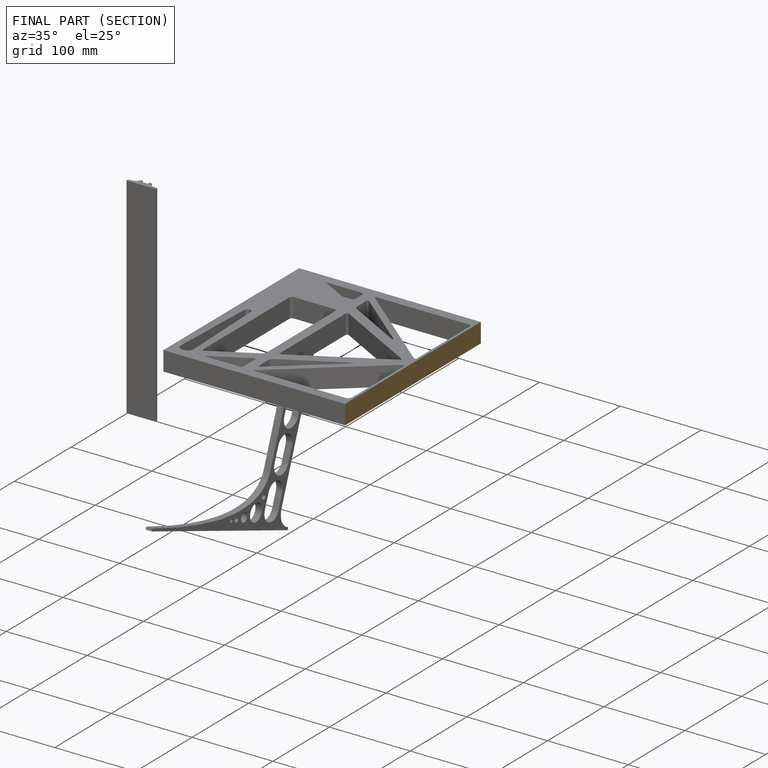
[diagram: finished part — half-section view (interior)]
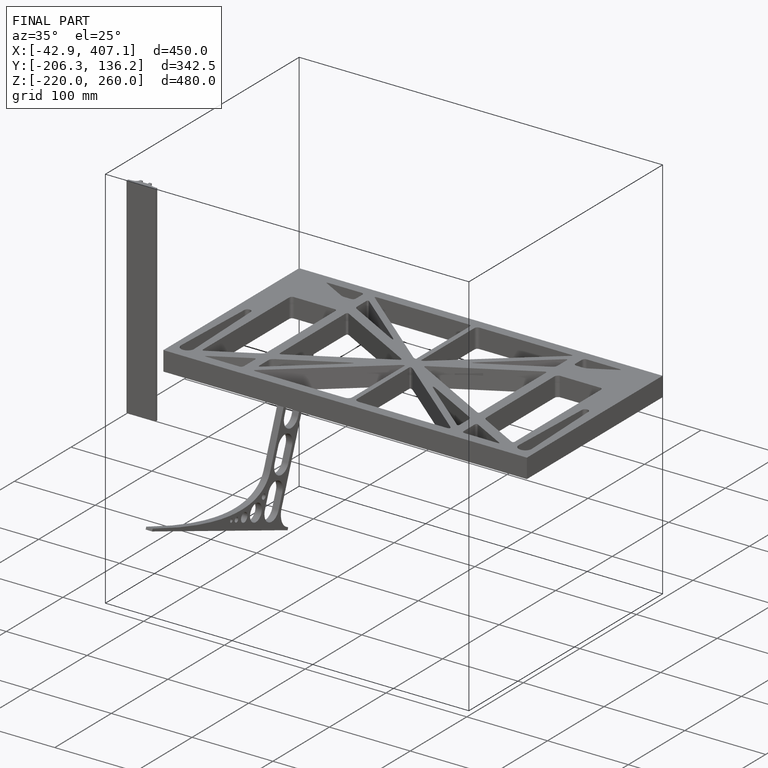
[diagram: finished part — iso view with bounding-box wireframe]
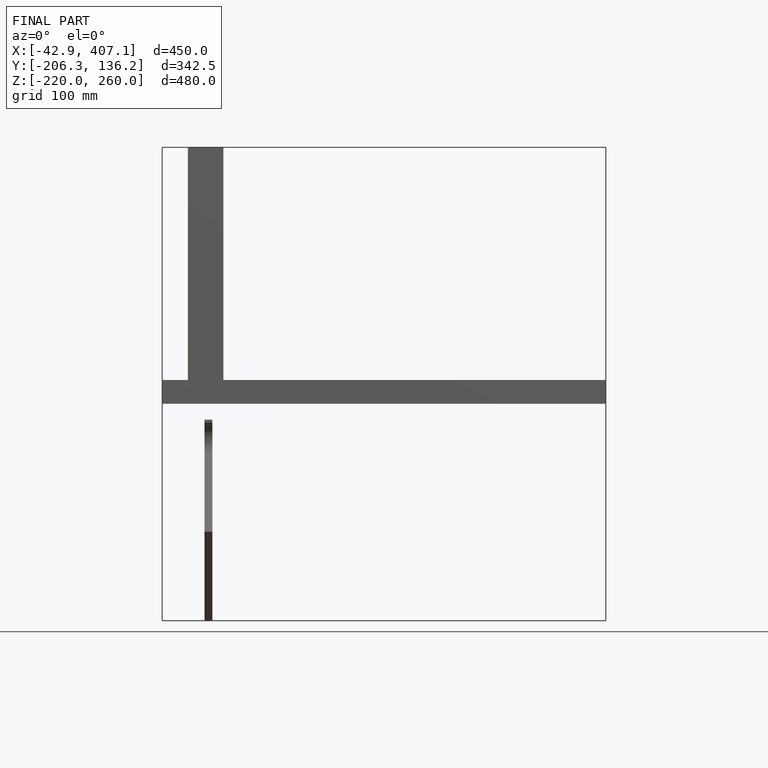
[diagram: finished part — front view with bounding-box wireframe]
